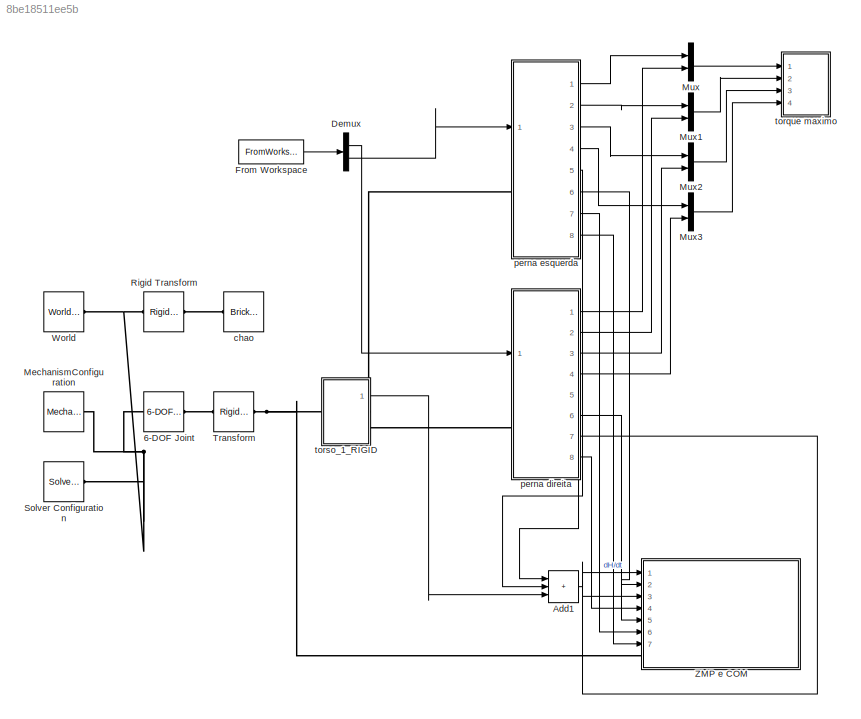
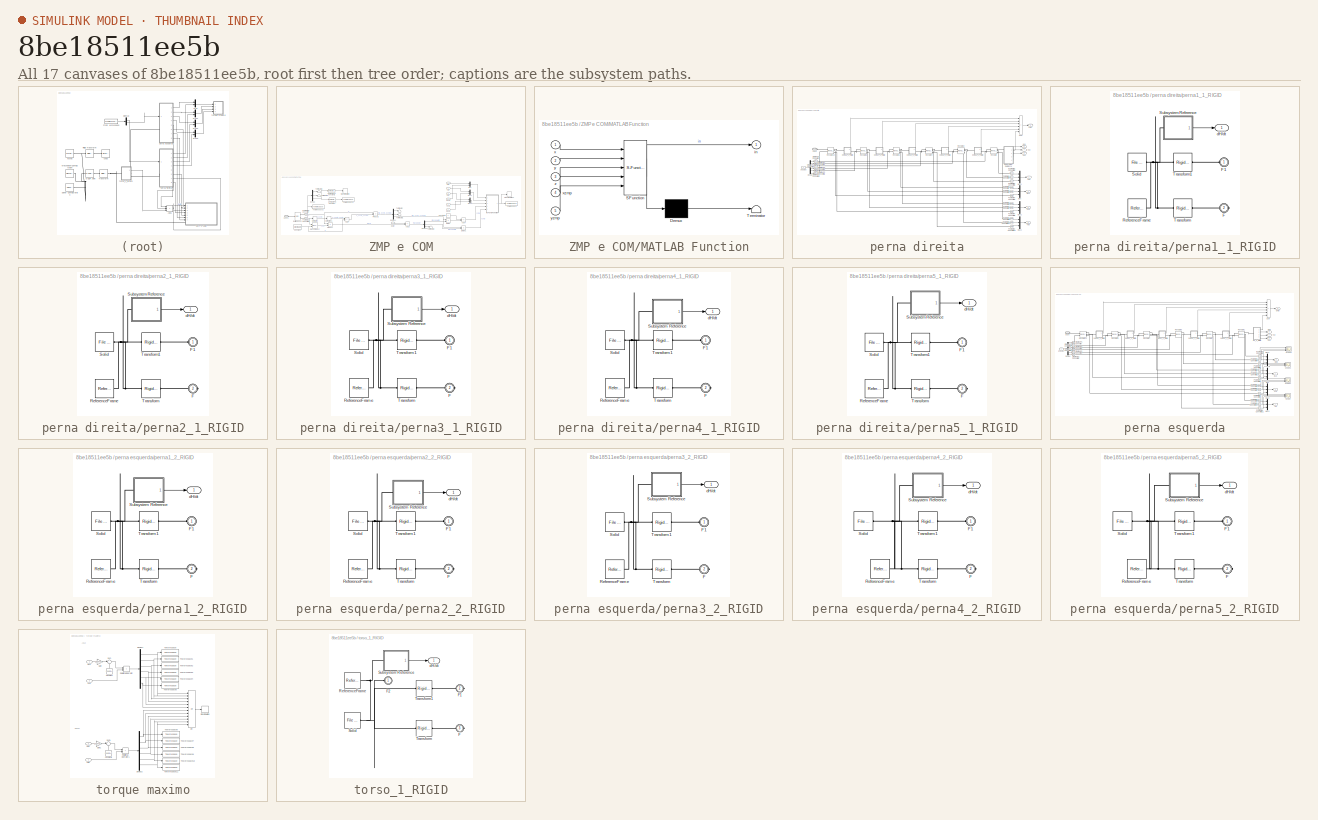
[diagram: thumbnail index - all 17 canvases of the model, root first then tree order]
MODEL slx_8be18511ee5b
KIND model
CONFIG AbsTol = auto
CONFIG EnableMultiTasking = off
CONFIG FixedStep = auto
CONFIG MaxStep = auto
CONFIG MinStep = auto
CONFIG RelTol = 1e-3
CONFIG SampleTimeConstraint = Unconstrained
CONFIG SolverName = VariableStepAuto
CONFIG StartTime = 0.0
CONFIG StopTime = 3
WORKSPACE source: external: MAT-File  (data not in archive)
BLOCK [Reference] 6-DOF Joint  REF=sm_lib/Joints/6-DOF Joint
  Ports = [0, 0, 0, 0, 0, 1, 1]
  SourceBlock = sm_lib/Joints/6-DOF Joint
  SourceProductBaseCode = MS
  SourceType = 6-DOF Joint
BLOCK [Sum] Add1
  IconShape = rectangular
  Inputs = +++
  Ports = [3, 1]
BLOCK [Demux] Demux
  Outputs = 2
  Ports = [1, 2]
BLOCK [FromWorkspace] From Workspace
  VariableName = inputsim
BLOCK [Reference] MechanismConfiguration  REF=sm_lib/Utilities/Mechanism
Configuration
  Ports = [0, 0, 0, 0, 0, 0, 1]
  SourceBlock = sm_lib/Utilities/Mechanism\nConfiguration
  SourceProductBaseCode = MS
  SourceType = Mechanism\nConfiguration
BLOCK [Mux] Mux
  DisplayOption = bar
  Inputs = 2
  Ports = [2, 1]
BLOCK [Mux] Mux1
  DisplayOption = bar
  Inputs = 2
  Ports = [2, 1]
BLOCK [Mux] Mux2
  DisplayOption = bar
  Inputs = 2
  Ports = [2, 1]
BLOCK [Mux] Mux3
  DisplayOption = bar
  Inputs = 2
  Ports = [2, 1]
BLOCK [Reference] Rigid Transform  REF=sm_lib/Frames and
Transforms/Rigid
Transform
  Ports = [0, 0, 0, 0, 0, 1, 1]
  SourceBlock = sm_lib/Frames and\nTransforms/Rigid\nTransform
  SourceProductBaseCode = MS
  SourceType = Rigid\nTransform
BLOCK [Reference] Solver Configuration  REF=nesl_utility/Solver
Configuration
  Ports = [0, 0, 0, 0, 0, 0, 1]
  SourceBlock = nesl_utility/Solver\nConfiguration
  SourceProductBaseCode = SS,PW,VE
  SourceType = Solver\nConfiguration
BLOCK [Reference] Transform  REF=sm_lib/Frames and
Transforms/Rigid
Transform
  Ports = [0, 0, 0, 0, 0, 1, 1]
  SourceBlock = sm_lib/Frames and\nTransforms/Rigid\nTransform
  SourceProductBaseCode = MS
  SourceType = Rigid\nTransform
BLOCK [Reference] World  REF=sm_lib/Frames and
Transforms/World Frame
  Ports = [0, 0, 0, 0, 0, 0, 1]
  SourceBlock = sm_lib/Frames and\nTransforms/World Frame
  SourceProductBaseCode = MS
  SourceType = World Frame
BLOCK [SubSystem] ZMP e COM
  Ports = [7, 0, 0, 0, 0, 1]
  RequestExecContextInheritance = off
BLOCK [Sum] ZMP e COM/Add
  IconShape = rectangular
  Inputs = +-
  Ports = [2, 1]
BLOCK [Sum] ZMP e COM/Add2
  IconShape = rectangular
  Inputs = -+
  Ports = [2, 1]
BLOCK [Sum] ZMP e COM/Add4
  IconShape = rectangular
  Inputs = +-
  Ports = [2, 1]
BLOCK [Reference] ZMP e COM/Compare To Constant  REF=simulink/Logic and Bit
Operations/Compare
To Constant
  Ports = [1, 1]
  SourceBlock = simulink/Logic and Bit\nOperations/Compare\nTo Constant
  SourceProductBaseCode = SL
  SourceType = Compare To Constant
BLOCK [Reference] ZMP e COM/Compare To Constant1  REF=simulink/Logic and Bit
Operations/Compare
To Constant
  Ports = [1, 1]
  SourceBlock = simulink/Logic and Bit\nOperations/Compare\nTo Constant
  SourceProductBaseCode = SL
  SourceType = Compare To Constant
BLOCK [PMIOPort] ZMP e COM/Conn1
  Side = Left
BLOCK [Constant] ZMP e COM/Constant
  Value = gravidade
BLOCK [Constant] ZMP e COM/Constant2
  Value = 0
BLOCK [Reference] ZMP e COM/Cross Product  REF=Contact_Forces_Lib/Math/Cross
Product
  Ports = [2, 1]
  SourceBlock = Contact_Forces_Lib/Math/Cross\nProduct
  SourceProductName = Simscape Multibody Contact Forces Library
  SourceType = SubSystem
BLOCK [Demux] ZMP e COM/Demux
  Outputs = 3
  Ports = [1, 3]
BLOCK [Demux] ZMP e COM/Demux1
  Outputs = 3
  Ports = [1, 3]
BLOCK [Demux] ZMP e COM/Demux2
  Outputs = 3
  Ports = [1, 3]
BLOCK [Derivative] ZMP e COM/Derivative
BLOCK [Derivative] ZMP e COM/Derivative1
BLOCK [Product] ZMP e COM/Divide
  Inputs = /*
  Ports = [2, 1]
BLOCK [Product] ZMP e COM/Divide1
  Inputs = /*
  Ports = [2, 1]
BLOCK [Reference] ZMP e COM/Inertia Sensor  REF=sm_lib/Body Elements/Inertia Sensor
  Ports = [0, 0, 0, 0, 0, 1, 2]
  SourceBlock = sm_lib/Body Elements/Inertia Sensor
  SourceProductBaseCode = MS
  SourceType = Inertia Sensor
BLOCK [SubSystem] ZMP e COM/MATLAB Function
  Commented = on
  ErrorFcn = Stateflow.Translate.translate
  PermitHierarchicalResolution = ExplicitOnly
  Ports = [5, 1]
  RequestExecContextInheritance = off
  SFBlockType = MATLAB Function
  TreatAsAtomicUnit = on
BLOCK [Demux] ZMP e COM/MATLAB Function/ Demux 
  Outputs = 1
  Ports = [1, 1]
BLOCK [S-Function] ZMP e COM/MATLAB Function/ SFunction 
  EnableBusSupport = on
  FunctionName = sf_sfun
  PortCounts = [5 2]
  Ports = [5, 2]
  SFcnIsStateOwnerBlock = off
  SFunctionDeploymentMode = off
  Tag = Stateflow S-Function 1
BLOCK [Terminator] ZMP e COM/MATLAB Function/ Terminator 
BLOCK [Outport] ZMP e COM/MATLAB Function/in
BLOCK [Inport] ZMP e COM/MATLAB Function/x
BLOCK [Inport] ZMP e COM/MATLAB Function/xzmp
  Port = 4
BLOCK [Inport] ZMP e COM/MATLAB Function/y
  Port = 2
BLOCK [Inport] ZMP e COM/MATLAB Function/yzmp
  Port = 5
BLOCK [Inport] ZMP e COM/MATLAB Function/z
  Port = 3
BLOCK [Mux] ZMP e COM/Mux
  DisplayOption = bar
  Inputs = 2
  Ports = [2, 1]
BLOCK [Mux] ZMP e COM/Mux1
  DisplayOption = bar
  Inputs = 2
  Ports = [2, 1]
BLOCK [Mux] ZMP e COM/Mux2
  DisplayOption = bar
  Inputs = 2
  Ports = [2, 1]
BLOCK [Reference] ZMP e COM/PS-Simulink Converter  REF=nesl_utility/PS-Simulink
Converter
  Ports = [0, 1, 0, 0, 0, 1]
  SourceBlock = nesl_utility/PS-Simulink\nConverter
  SourceProductBaseCode = SS,PW,VE
  SourceType = PS-Simulink\nConverter
BLOCK [Reference] ZMP e COM/PS-Simulink Converter1  REF=nesl_utility/PS-Simulink
Converter
  Ports = [0, 1, 0, 0, 0, 1]
  SourceBlock = nesl_utility/PS-Simulink\nConverter
  SourceProductBaseCode = SS,PW,VE
  SourceType = PS-Simulink\nConverter
BLOCK [Product] ZMP e COM/Product
  Ports = [2, 1]
BLOCK [Product] ZMP e COM/Product1
  Ports = [2, 1]
BLOCK [Stop] ZMP e COM/Stop Simulation
  Commented = on
BLOCK [Stop] ZMP e COM/Stop Simulation1
  Commented = on
BLOCK [Terminator] ZMP e COM/Terminator
BLOCK [Terminator] ZMP e COM/Terminator1
BLOCK [Terminator] ZMP e COM/Terminator2
BLOCK [Terminator] ZMP e COM/Terminator3
BLOCK [Terminator] ZMP e COM/Terminator4
BLOCK [ToWorkspace] ZMP e COM/To Workspace
  Commented = on
  FixptAsFi = on
  MaxDataPoints = inf
  Ports = [1]
  SampleTime = -1
  Save2DSignal = 2-D array (concatenate along first dimension)
  VariableName = ZMP
BLOCK [ToWorkspace] ZMP e COM/To Workspace1
  FixptAsFi = on
  MaxDataPoints = inf
  Ports = [1]
  SampleTime = -1
  Save2DSignal = 2-D array (concatenate along first dimension)
  VariableName = queda
BLOCK [ToWorkspace] ZMP e COM/To Workspace2
  FixptAsFi = on
  MaxDataPoints = inf
  Ports = [1]
  SampleTime = -1
  Save2DSignal = 2-D array (concatenate along first dimension)
  VariableName = COM
BLOCK [Inport] ZMP e COM/Xdir
  Port = 2
BLOCK [Inport] ZMP e COM/Xesq
  Port = 5
BLOCK [Inport] ZMP e COM/Ydir
  Port = 3
BLOCK [Inport] ZMP e COM/Yesq
  Port = 6
BLOCK [Inport] ZMP e COM/Zdir
  Port = 4
BLOCK [Inport] ZMP e COM/Zesq
  Port = 7
BLOCK [Inport] ZMP e COM/dH//dt
BLOCK [Reference] chao  REF=sm_lib/Body Elements/Brick Solid
  Ports = [0, 0, 0, 0, 0, 0, 1]
  SourceBlock = sm_lib/Body Elements/Brick Solid
  SourceProductBaseCode = MS
  SourceType = Brick Solid
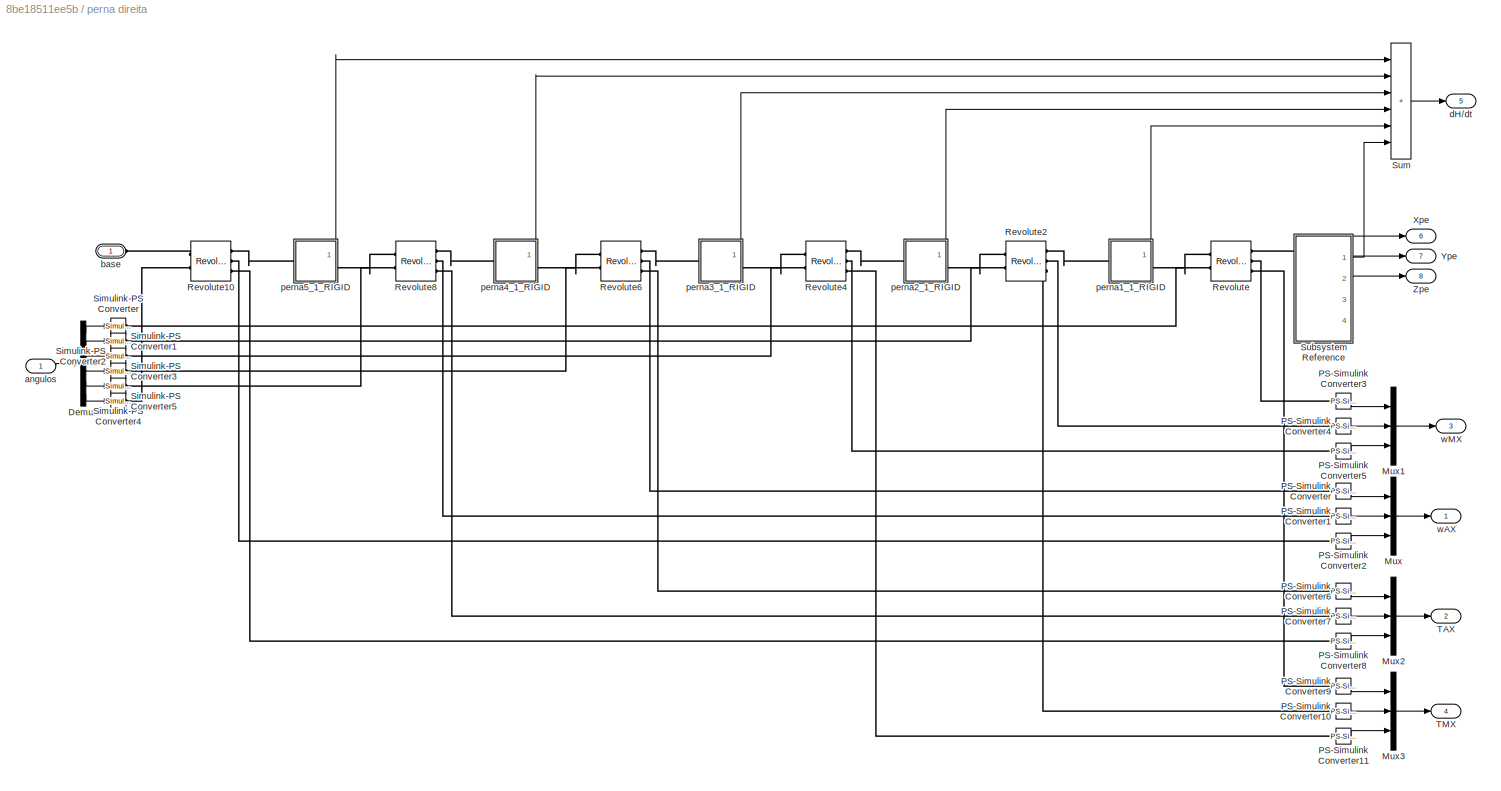
BLOCK [SubSystem] perna direita
  NameLocation = top
  Ports = [1, 8, 0, 0, 0, 1]
  RequestExecContextInheritance = off
BLOCK [Demux] perna direita/Demux
  Outputs = 6
  Ports = [1, 6]
BLOCK [Mux] perna direita/Mux
  DisplayOption = bar
  Inputs = 3
  Ports = [3, 1]
BLOCK [Mux] perna direita/Mux1
  DisplayOption = bar
  Inputs = 3
  Ports = [3, 1]
BLOCK [Mux] perna direita/Mux2
  DisplayOption = bar
  Inputs = 3
  Ports = [3, 1]
BLOCK [Mux] perna direita/Mux3
  DisplayOption = bar
  Inputs = 3
  Ports = [3, 1]
BLOCK [Reference] perna direita/PS-Simulink Converter  REF=nesl_utility/PS-Simulink
Converter
  Ports = [0, 1, 0, 0, 0, 1]
  SourceBlock = nesl_utility/PS-Simulink\nConverter
  SourceProductBaseCode = SS,PW,VE
  SourceType = PS-Simulink\nConverter
BLOCK [Reference] perna direita/PS-Simulink Converter1  REF=nesl_utility/PS-Simulink
Converter
  Ports = [0, 1, 0, 0, 0, 1]
  SourceBlock = nesl_utility/PS-Simulink\nConverter
  SourceProductBaseCode = SS,PW,VE
  SourceType = PS-Simulink\nConverter
BLOCK [Reference] perna direita/PS-Simulink Converter10  REF=nesl_utility/PS-Simulink
Converter
  Ports = [0, 1, 0, 0, 0, 1]
  SourceBlock = nesl_utility/PS-Simulink\nConverter
  SourceProductBaseCode = SS,PW,VE
  SourceType = PS-Simulink\nConverter
BLOCK [Reference] perna direita/PS-Simulink Converter11  REF=nesl_utility/PS-Simulink
Converter
  Ports = [0, 1, 0, 0, 0, 1]
  SourceBlock = nesl_utility/PS-Simulink\nConverter
  SourceProductBaseCode = SS,PW,VE
  SourceType = PS-Simulink\nConverter
BLOCK [Reference] perna direita/PS-Simulink Converter2  REF=nesl_utility/PS-Simulink
Converter
  Ports = [0, 1, 0, 0, 0, 1]
  SourceBlock = nesl_utility/PS-Simulink\nConverter
  SourceProductBaseCode = SS,PW,VE
  SourceType = PS-Simulink\nConverter
BLOCK [Reference] perna direita/PS-Simulink Converter3  REF=nesl_utility/PS-Simulink
Converter
  Ports = [0, 1, 0, 0, 0, 1]
  SourceBlock = nesl_utility/PS-Simulink\nConverter
  SourceProductBaseCode = SS,PW,VE
  SourceType = PS-Simulink\nConverter
BLOCK [Reference] perna direita/PS-Simulink Converter4  REF=nesl_utility/PS-Simulink
Converter
  Ports = [0, 1, 0, 0, 0, 1]
  SourceBlock = nesl_utility/PS-Simulink\nConverter
  SourceProductBaseCode = SS,PW,VE
  SourceType = PS-Simulink\nConverter
BLOCK [Reference] perna direita/PS-Simulink Converter5  REF=nesl_utility/PS-Simulink
Converter
  Ports = [0, 1, 0, 0, 0, 1]
  SourceBlock = nesl_utility/PS-Simulink\nConverter
  SourceProductBaseCode = SS,PW,VE
  SourceType = PS-Simulink\nConverter
BLOCK [Reference] perna direita/PS-Simulink Converter6  REF=nesl_utility/PS-Simulink
Converter
  Ports = [0, 1, 0, 0, 0, 1]
  SourceBlock = nesl_utility/PS-Simulink\nConverter
  SourceProductBaseCode = SS,PW,VE
  SourceType = PS-Simulink\nConverter
BLOCK [Reference] perna direita/PS-Simulink Converter7  REF=nesl_utility/PS-Simulink
Converter
  Ports = [0, 1, 0, 0, 0, 1]
  SourceBlock = nesl_utility/PS-Simulink\nConverter
  SourceProductBaseCode = SS,PW,VE
  SourceType = PS-Simulink\nConverter
BLOCK [Reference] perna direita/PS-Simulink Converter8  REF=nesl_utility/PS-Simulink
Converter
  Ports = [0, 1, 0, 0, 0, 1]
  SourceBlock = nesl_utility/PS-Simulink\nConverter
  SourceProductBaseCode = SS,PW,VE
  SourceType = PS-Simulink\nConverter
BLOCK [Reference] perna direita/PS-Simulink Converter9  REF=nesl_utility/PS-Simulink
Converter
  Ports = [0, 1, 0, 0, 0, 1]
  SourceBlock = nesl_utility/PS-Simulink\nConverter
  SourceProductBaseCode = SS,PW,VE
  SourceType = PS-Simulink\nConverter
BLOCK [Reference] perna direita/Revolute  REF=sm_lib/Joints/Revolute Joint
  Ports = [0, 0, 0, 0, 0, 2, 3]
  SourceBlock = sm_lib/Joints/Revolute Joint
  SourceProductBaseCode = MS
  SourceType = Revolute Joint
BLOCK [Reference] perna direita/Revolute10  REF=sm_lib/Joints/Revolute Joint
  Ports = [0, 0, 0, 0, 0, 2, 3]
  SourceBlock = sm_lib/Joints/Revolute Joint
  SourceProductBaseCode = MS
  SourceType = Revolute Joint
BLOCK [Reference] perna direita/Revolute2  REF=sm_lib/Joints/Revolute Joint
  Ports = [0, 0, 0, 0, 0, 2, 3]
  SourceBlock = sm_lib/Joints/Revolute Joint
  SourceProductBaseCode = MS
  SourceType = Revolute Joint
BLOCK [Reference] perna direita/Revolute4  REF=sm_lib/Joints/Revolute Joint
  Ports = [0, 0, 0, 0, 0, 2, 3]
  SourceBlock = sm_lib/Joints/Revolute Joint
  SourceProductBaseCode = MS
  SourceType = Revolute Joint
BLOCK [Reference] perna direita/Revolute6  REF=sm_lib/Joints/Revolute Joint
  Ports = [0, 0, 0, 0, 0, 2, 3]
  SourceBlock = sm_lib/Joints/Revolute Joint
  SourceProductBaseCode = MS
  SourceType = Revolute Joint
BLOCK [Reference] perna direita/Revolute8  REF=sm_lib/Joints/Revolute Joint
  Ports = [0, 0, 0, 0, 0, 2, 3]
  SourceBlock = sm_lib/Joints/Revolute Joint
  SourceProductBaseCode = MS
  SourceType = Revolute Joint
BLOCK [Reference] perna direita/Simulink-PS Converter  REF=nesl_utility/Simulink-PS
Converter
  Ports = [1, 0, 0, 0, 0, 0, 1]
  SourceBlock = nesl_utility/Simulink-PS\nConverter
  SourceProductBaseCode = SS,PW,VE
  SourceType = Simulink-PS\nConverter
BLOCK [Reference] perna direita/Simulink-PS Converter1  REF=nesl_utility/Simulink-PS
Converter
  Ports = [1, 0, 0, 0, 0, 0, 1]
  SourceBlock = nesl_utility/Simulink-PS\nConverter
  SourceProductBaseCode = SS,PW,VE
  SourceType = Simulink-PS\nConverter
BLOCK [Reference] perna direita/Simulink-PS Converter2  REF=nesl_utility/Simulink-PS
Converter
  Ports = [1, 0, 0, 0, 0, 0, 1]
  SourceBlock = nesl_utility/Simulink-PS\nConverter
  SourceProductBaseCode = SS,PW,VE
  SourceType = Simulink-PS\nConverter
BLOCK [Reference] perna direita/Simulink-PS Converter3  REF=nesl_utility/Simulink-PS
Converter
  Ports = [1, 0, 0, 0, 0, 0, 1]
  SourceBlock = nesl_utility/Simulink-PS\nConverter
  SourceProductBaseCode = SS,PW,VE
  SourceType = Simulink-PS\nConverter
BLOCK [Reference] perna direita/Simulink-PS Converter4  REF=nesl_utility/Simulink-PS
Converter
  Ports = [1, 0, 0, 0, 0, 0, 1]
  SourceBlock = nesl_utility/Simulink-PS\nConverter
  SourceProductBaseCode = SS,PW,VE
  SourceType = Simulink-PS\nConverter
BLOCK [Reference] perna direita/Simulink-PS Converter5  REF=nesl_utility/Simulink-PS
Converter
  Ports = [1, 0, 0, 0, 0, 0, 1]
  SourceBlock = nesl_utility/Simulink-PS\nConverter
  SourceProductBaseCode = SS,PW,VE
  SourceType = Simulink-PS\nConverter
BLOCK [SubSystem] perna direita/Subsystem Reference
  Ports = [0, 4, 0, 0, 0, 1]
  ReferencedSubsystem = pe
  RequestExecContextInheritance = off
BLOCK [Sum] perna direita/Sum
  IconShape = rectangular
  Inputs = ++++++
  Ports = [6, 1]
BLOCK [Outport] perna direita/TAX
  Port = 2
BLOCK [Outport] perna direita/TMX
  Port = 4
BLOCK [Outport] perna direita/Xpe
  Port = 6
BLOCK [Outport] perna direita/Ype
  Port = 7
BLOCK [Outport] perna direita/Zpe
  Port = 8
BLOCK [Inport] perna direita/angulos
BLOCK [PMIOPort] perna direita/base
  Side = Left
BLOCK [Outport] perna direita/dH//dt
  Port = 5
BLOCK [SubSystem] perna direita/perna1_1_RIGID
  Ports = [0, 1, 0, 0, 0, 1, 1]
  RequestExecContextInheritance = off
BLOCK [PMIOPort] perna direita/perna1_1_RIGID/F
  Port = 2
  Side = Right
BLOCK [PMIOPort] perna direita/perna1_1_RIGID/F1
  Side = Left
BLOCK [Reference] perna direita/perna1_1_RIGID/ReferenceFrame  REF=sm_lib/Frames and
Transforms/Reference
Frame
  Ports = [0, 0, 0, 0, 0, 0, 1]
  SourceBlock = sm_lib/Frames and\nTransforms/Reference\nFrame
  SourceProductBaseCode = MS
  SourceType = Reference\nFrame
BLOCK [Reference] perna direita/perna1_1_RIGID/Solid  REF=sm_lib/Body Elements/File Solid
  Ports = [0, 0, 0, 0, 0, 0, 1]
  SourceBlock = sm_lib/Body Elements/File Solid
  SourceProductBaseCode = MS
  SourceType = File Solid
BLOCK [SubSystem] perna direita/perna1_1_RIGID/Subsystem Reference
  Ports = [0, 1, 0, 0, 0, 1]
  ReferencedSubsystem = dH_dt
  RequestExecContextInheritance = off
BLOCK [Reference] perna direita/perna1_1_RIGID/Transform  REF=sm_lib/Frames and
Transforms/Rigid
Transform
  Ports = [0, 0, 0, 0, 0, 1, 1]
  SourceBlock = sm_lib/Frames and\nTransforms/Rigid\nTransform
  SourceProductBaseCode = MS
  SourceType = Rigid\nTransform
BLOCK [Reference] perna direita/perna1_1_RIGID/Transform1  REF=sm_lib/Frames and
Transforms/Rigid
Transform
  Ports = [0, 0, 0, 0, 0, 1, 1]
  SourceBlock = sm_lib/Frames and\nTransforms/Rigid\nTransform
  SourceProductBaseCode = MS
  SourceType = Rigid\nTransform
BLOCK [Outport] perna direita/perna1_1_RIGID/dH//dt
BLOCK [SubSystem] perna direita/perna2_1_RIGID
  Ports = [0, 1, 0, 0, 0, 1, 1]
  RequestExecContextInheritance = off
BLOCK [PMIOPort] perna direita/perna2_1_RIGID/F
  Port = 2
  Side = Right
BLOCK [PMIOPort] perna direita/perna2_1_RIGID/F1
  Side = Left
BLOCK [Reference] perna direita/perna2_1_RIGID/ReferenceFrame  REF=sm_lib/Frames and
Transforms/Reference
Frame
  Ports = [0, 0, 0, 0, 0, 0, 1]
  SourceBlock = sm_lib/Frames and\nTransforms/Reference\nFrame
  SourceProductBaseCode = MS
  SourceType = Reference\nFrame
BLOCK [Reference] perna direita/perna2_1_RIGID/Solid  REF=sm_lib/Body Elements/File Solid
  Ports = [0, 0, 0, 0, 0, 0, 1]
  SourceBlock = sm_lib/Body Elements/File Solid
  SourceProductBaseCode = MS
  SourceType = File Solid
BLOCK [SubSystem] perna direita/perna2_1_RIGID/Subsystem Reference
  Ports = [0, 1, 0, 0, 0, 1]
  ReferencedSubsystem = dH_dt
  RequestExecContextInheritance = off
BLOCK [Reference] perna direita/perna2_1_RIGID/Transform  REF=sm_lib/Frames and
Transforms/Rigid
Transform
  Ports = [0, 0, 0, 0, 0, 1, 1]
  SourceBlock = sm_lib/Frames and\nTransforms/Rigid\nTransform
  SourceProductBaseCode = MS
  SourceType = Rigid\nTransform
BLOCK [Reference] perna direita/perna2_1_RIGID/Transform1  REF=sm_lib/Frames and
Transforms/Rigid
Transform
  Ports = [0, 0, 0, 0, 0, 1, 1]
  SourceBlock = sm_lib/Frames and\nTransforms/Rigid\nTransform
  SourceProductBaseCode = MS
  SourceType = Rigid\nTransform
BLOCK [Outport] perna direita/perna2_1_RIGID/dH//dt
BLOCK [SubSystem] perna direita/perna3_1_RIGID
  Ports = [0, 1, 0, 0, 0, 1, 1]
  RequestExecContextInheritance = off
BLOCK [PMIOPort] perna direita/perna3_1_RIGID/F
  Port = 2
  Side = Right
BLOCK [PMIOPort] perna direita/perna3_1_RIGID/F1
  Side = Left
BLOCK [Reference] perna direita/perna3_1_RIGID/ReferenceFrame  REF=sm_lib/Frames and
Transforms/Reference
Frame
  Ports = [0, 0, 0, 0, 0, 0, 1]
  SourceBlock = sm_lib/Frames and\nTransforms/Reference\nFrame
  SourceProductBaseCode = MS
  SourceType = Reference\nFrame
BLOCK [Reference] perna direita/perna3_1_RIGID/Solid  REF=sm_lib/Body Elements/File Solid
  Ports = [0, 0, 0, 0, 0, 0, 1]
  SourceBlock = sm_lib/Body Elements/File Solid
  SourceProductBaseCode = MS
  SourceType = File Solid
BLOCK [SubSystem] perna direita/perna3_1_RIGID/Subsystem Reference
  Ports = [0, 1, 0, 0, 0, 1]
  ReferencedSubsystem = dH_dt
  RequestExecContextInheritance = off
BLOCK [Reference] perna direita/perna3_1_RIGID/Transform  REF=sm_lib/Frames and
Transforms/Rigid
Transform
  Ports = [0, 0, 0, 0, 0, 1, 1]
  SourceBlock = sm_lib/Frames and\nTransforms/Rigid\nTransform
  SourceProductBaseCode = MS
  SourceType = Rigid\nTransform
BLOCK [Reference] perna direita/perna3_1_RIGID/Transform1  REF=sm_lib/Frames and
Transforms/Rigid
Transform
  Ports = [0, 0, 0, 0, 0, 1, 1]
  SourceBlock = sm_lib/Frames and\nTransforms/Rigid\nTransform
  SourceProductBaseCode = MS
  SourceType = Rigid\nTransform
BLOCK [Outport] perna direita/perna3_1_RIGID/dH//dt
BLOCK [SubSystem] perna direita/perna4_1_RIGID
  Ports = [0, 1, 0, 0, 0, 1, 1]
  RequestExecContextInheritance = off
BLOCK [PMIOPort] perna direita/perna4_1_RIGID/F
  Port = 2
  Side = Right
BLOCK [PMIOPort] perna direita/perna4_1_RIGID/F1
  Side = Left
BLOCK [Reference] perna direita/perna4_1_RIGID/ReferenceFrame  REF=sm_lib/Frames and
Transforms/Reference
Frame
  Ports = [0, 0, 0, 0, 0, 0, 1]
  SourceBlock = sm_lib/Frames and\nTransforms/Reference\nFrame
  SourceProductBaseCode = MS
  SourceType = Reference\nFrame
BLOCK [Reference] perna direita/perna4_1_RIGID/Solid  REF=sm_lib/Body Elements/File Solid
  Ports = [0, 0, 0, 0, 0, 0, 1]
  SourceBlock = sm_lib/Body Elements/File Solid
  SourceProductBaseCode = MS
  SourceType = File Solid
BLOCK [SubSystem] perna direita/perna4_1_RIGID/Subsystem Reference
  Ports = [0, 1, 0, 0, 0, 1]
  ReferencedSubsystem = dH_dt
  RequestExecContextInheritance = off
BLOCK [Reference] perna direita/perna4_1_RIGID/Transform  REF=sm_lib/Frames and
Transforms/Rigid
Transform
  Ports = [0, 0, 0, 0, 0, 1, 1]
  SourceBlock = sm_lib/Frames and\nTransforms/Rigid\nTransform
  SourceProductBaseCode = MS
  SourceType = Rigid\nTransform
BLOCK [Reference] perna direita/perna4_1_RIGID/Transform1  REF=sm_lib/Frames and
Transforms/Rigid
Transform
  Ports = [0, 0, 0, 0, 0, 1, 1]
  SourceBlock = sm_lib/Frames and\nTransforms/Rigid\nTransform
  SourceProductBaseCode = MS
  SourceType = Rigid\nTransform
BLOCK [Outport] perna direita/perna4_1_RIGID/dH//dt
BLOCK [SubSystem] perna direita/perna5_1_RIGID
  Ports = [0, 1, 0, 0, 0, 1, 1]
  RequestExecContextInheritance = off
BLOCK [PMIOPort] perna direita/perna5_1_RIGID/F
  Port = 2
  Side = Right
BLOCK [PMIOPort] perna direita/perna5_1_RIGID/F1
  Side = Left
BLOCK [Reference] perna direita/perna5_1_RIGID/ReferenceFrame  REF=sm_lib/Frames and
Transforms/Reference
Frame
  Ports = [0, 0, 0, 0, 0, 0, 1]
  SourceBlock = sm_lib/Frames and\nTransforms/Reference\nFrame
  SourceProductBaseCode = MS
  SourceType = Reference\nFrame
BLOCK [Reference] perna direita/perna5_1_RIGID/Solid  REF=sm_lib/Body Elements/File Solid
  Ports = [0, 0, 0, 0, 0, 0, 1]
  SourceBlock = sm_lib/Body Elements/File Solid
  SourceProductBaseCode = MS
  SourceType = File Solid
BLOCK [SubSystem] perna direita/perna5_1_RIGID/Subsystem Reference
  Ports = [0, 1, 0, 0, 0, 1]
  ReferencedSubsystem = dH_dt
  RequestExecContextInheritance = off
BLOCK [Reference] perna direita/perna5_1_RIGID/Transform  REF=sm_lib/Frames and
Transforms/Rigid
Transform
  Ports = [0, 0, 0, 0, 0, 1, 1]
  SourceBlock = sm_lib/Frames and\nTransforms/Rigid\nTransform
  SourceProductBaseCode = MS
  SourceType = Rigid\nTransform
BLOCK [Reference] perna direita/perna5_1_RIGID/Transform1  REF=sm_lib/Frames and
Transforms/Rigid
Transform
  Ports = [0, 0, 0, 0, 0, 1, 1]
  SourceBlock = sm_lib/Frames and\nTransforms/Rigid\nTransform
  SourceProductBaseCode = MS
  SourceType = Rigid\nTransform
BLOCK [Outport] perna direita/perna5_1_RIGID/dH//dt
BLOCK [Outport] perna direita/wAX
BLOCK [Outport] perna direita/wMX
  Port = 3
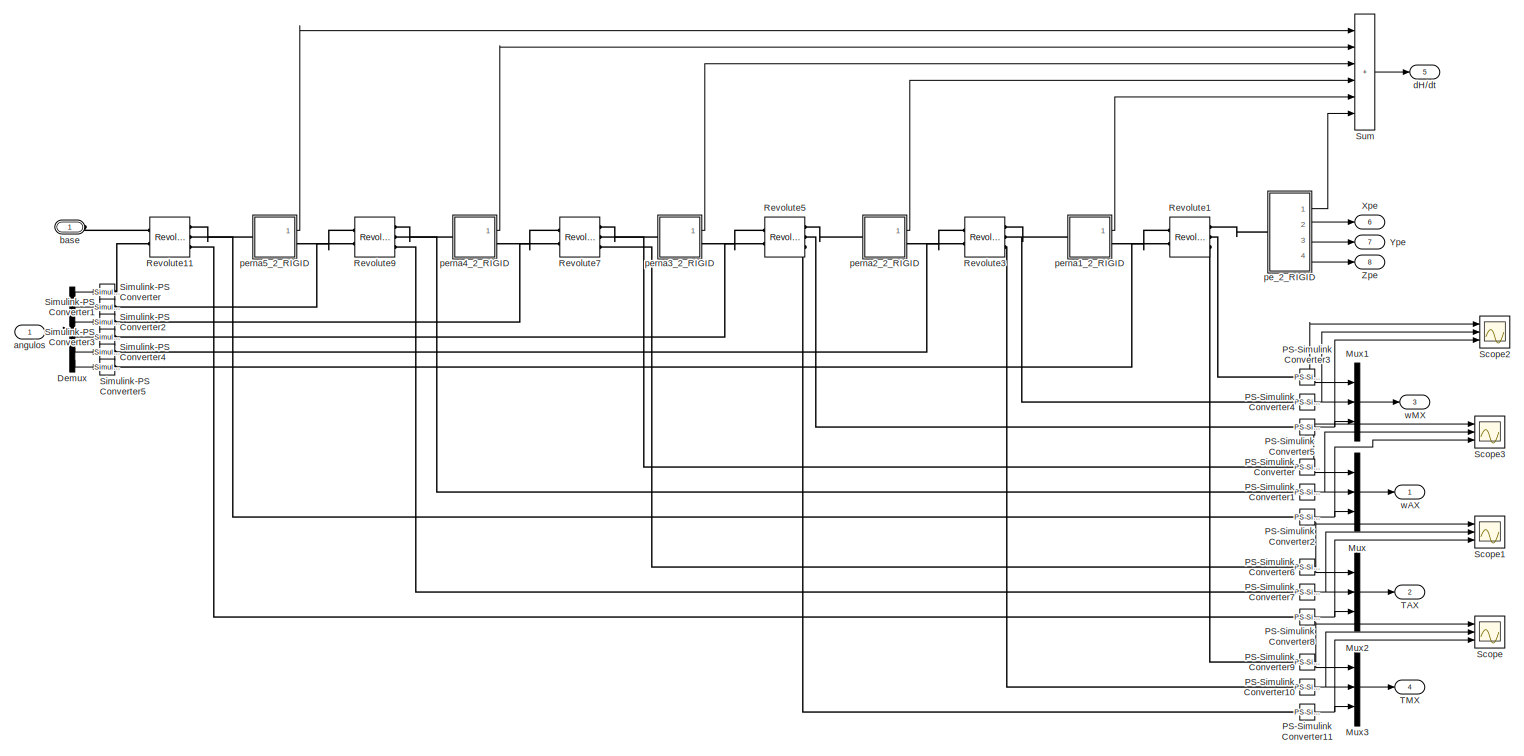
[diagram: perna esquerda - part 1/1, most of the canvas]
BLOCK [SubSystem] perna esquerda
  NameLocation = top
  Ports = [1, 8, 0, 0, 0, 1]
  RequestExecContextInheritance = off
BLOCK [Demux] perna esquerda/Demux
  Outputs = 6
  Ports = [1, 6]
BLOCK [Mux] perna esquerda/Mux
  DisplayOption = bar
  Inputs = 3
  Ports = [3, 1]
BLOCK [Mux] perna esquerda/Mux1
  DisplayOption = bar
  Inputs = 3
  Ports = [3, 1]
BLOCK [Mux] perna esquerda/Mux2
  DisplayOption = bar
  Inputs = 3
  Ports = [3, 1]
BLOCK [Mux] perna esquerda/Mux3
  DisplayOption = bar
  Inputs = 3
  Ports = [3, 1]
BLOCK [Reference] perna esquerda/PS-Simulink Converter  REF=nesl_utility/PS-Simulink
Converter
  Ports = [0, 1, 0, 0, 0, 1]
  SourceBlock = nesl_utility/PS-Simulink\nConverter
  SourceProductBaseCode = SS,PW,VE
  SourceType = PS-Simulink\nConverter
BLOCK [Reference] perna esquerda/PS-Simulink Converter1  REF=nesl_utility/PS-Simulink
Converter
  Ports = [0, 1, 0, 0, 0, 1]
  SourceBlock = nesl_utility/PS-Simulink\nConverter
  SourceProductBaseCode = SS,PW,VE
  SourceType = PS-Simulink\nConverter
BLOCK [Reference] perna esquerda/PS-Simulink Converter10  REF=nesl_utility/PS-Simulink
Converter
  Ports = [0, 1, 0, 0, 0, 1]
  SourceBlock = nesl_utility/PS-Simulink\nConverter
  SourceProductBaseCode = SS,PW,VE
  SourceType = PS-Simulink\nConverter
BLOCK [Reference] perna esquerda/PS-Simulink Converter11  REF=nesl_utility/PS-Simulink
Converter
  Ports = [0, 1, 0, 0, 0, 1]
  SourceBlock = nesl_utility/PS-Simulink\nConverter
  SourceProductBaseCode = SS,PW,VE
  SourceType = PS-Simulink\nConverter
BLOCK [Reference] perna esquerda/PS-Simulink Converter2  REF=nesl_utility/PS-Simulink
Converter
  Ports = [0, 1, 0, 0, 0, 1]
  SourceBlock = nesl_utility/PS-Simulink\nConverter
  SourceProductBaseCode = SS,PW,VE
  SourceType = PS-Simulink\nConverter
BLOCK [Reference] perna esquerda/PS-Simulink Converter3  REF=nesl_utility/PS-Simulink
Converter
  Ports = [0, 1, 0, 0, 0, 1]
  SourceBlock = nesl_utility/PS-Simulink\nConverter
  SourceProductBaseCode = SS,PW,VE
  SourceType = PS-Simulink\nConverter
BLOCK [Reference] perna esquerda/PS-Simulink Converter4  REF=nesl_utility/PS-Simulink
Converter
  Ports = [0, 1, 0, 0, 0, 1]
  SourceBlock = nesl_utility/PS-Simulink\nConverter
  SourceProductBaseCode = SS,PW,VE
  SourceType = PS-Simulink\nConverter
BLOCK [Reference] perna esquerda/PS-Simulink Converter5  REF=nesl_utility/PS-Simulink
Converter
  Ports = [0, 1, 0, 0, 0, 1]
  SourceBlock = nesl_utility/PS-Simulink\nConverter
  SourceProductBaseCode = SS,PW,VE
  SourceType = PS-Simulink\nConverter
BLOCK [Reference] perna esquerda/PS-Simulink Converter6  REF=nesl_utility/PS-Simulink
Converter
  Ports = [0, 1, 0, 0, 0, 1]
  SourceBlock = nesl_utility/PS-Simulink\nConverter
  SourceProductBaseCode = SS,PW,VE
  SourceType = PS-Simulink\nConverter
BLOCK [Reference] perna esquerda/PS-Simulink Converter7  REF=nesl_utility/PS-Simulink
Converter
  Ports = [0, 1, 0, 0, 0, 1]
  SourceBlock = nesl_utility/PS-Simulink\nConverter
  SourceProductBaseCode = SS,PW,VE
  SourceType = PS-Simulink\nConverter
BLOCK [Reference] perna esquerda/PS-Simulink Converter8  REF=nesl_utility/PS-Simulink
Converter
  Ports = [0, 1, 0, 0, 0, 1]
  SourceBlock = nesl_utility/PS-Simulink\nConverter
  SourceProductBaseCode = SS,PW,VE
  SourceType = PS-Simulink\nConverter
BLOCK [Reference] perna esquerda/PS-Simulink Converter9  REF=nesl_utility/PS-Simulink
Converter
  Ports = [0, 1, 0, 0, 0, 1]
  SourceBlock = nesl_utility/PS-Simulink\nConverter
  SourceProductBaseCode = SS,PW,VE
  SourceType = PS-Simulink\nConverter
BLOCK [Reference] perna esquerda/Revolute1  REF=sm_lib/Joints/Revolute Joint
  Ports = [0, 0, 0, 0, 0, 2, 3]
  SourceBlock = sm_lib/Joints/Revolute Joint
  SourceProductBaseCode = MS
  SourceType = Revolute Joint
BLOCK [Reference] perna esquerda/Revolute11  REF=sm_lib/Joints/Revolute Joint
  Ports = [0, 0, 0, 0, 0, 2, 3]
  SourceBlock = sm_lib/Joints/Revolute Joint
  SourceProductBaseCode = MS
  SourceType = Revolute Joint
BLOCK [Reference] perna esquerda/Revolute3  REF=sm_lib/Joints/Revolute Joint
  Ports = [0, 0, 0, 0, 0, 2, 3]
  SourceBlock = sm_lib/Joints/Revolute Joint
  SourceProductBaseCode = MS
  SourceType = Revolute Joint
BLOCK [Reference] perna esquerda/Revolute5  REF=sm_lib/Joints/Revolute Joint
  Ports = [0, 0, 0, 0, 0, 2, 3]
  SourceBlock = sm_lib/Joints/Revolute Joint
  SourceProductBaseCode = MS
  SourceType = Revolute Joint
BLOCK [Reference] perna esquerda/Revolute7  REF=sm_lib/Joints/Revolute Joint
  Ports = [0, 0, 0, 0, 0, 2, 3]
  SourceBlock = sm_lib/Joints/Revolute Joint
  SourceProductBaseCode = MS
  SourceType = Revolute Joint
BLOCK [Reference] perna esquerda/Revolute9  REF=sm_lib/Joints/Revolute Joint
  Ports = [0, 0, 0, 0, 0, 2, 3]
  SourceBlock = sm_lib/Joints/Revolute Joint
  SourceProductBaseCode = MS
  SourceType = Revolute Joint
BLOCK [Scope] perna esquerda/Scope
  Floating = off
  NumInputPorts = 3
  Ports = [3]
  ScopeSpecificationString = Simulink.scopes.TimeScopeBlockCfg('CurrentConfiguration', extmgr.ConfigurationSet(extmgr.Configuration('Core','General UI',true),extmgr.Configuration('Core','Source UI',true),extmgr.Configuration('Sources','WiredSimulink',true),extmgr.Configuration('Visuals','Time Domain',true,'SerializedDisplays',{struct('MinYLimReal','-0.08908','MaxYLimReal','0.05149','YLabelReal','','MinYLimMag','0.00000','MaxY...<+1487ch>
BLOCK [Scope] perna esquerda/Scope1
  Floating = off
  NumInputPorts = 3
  Ports = [3]
  ScopeSpecificationString = Simulink.scopes.TimeScopeBlockCfg('CurrentConfiguration', extmgr.ConfigurationSet(extmgr.Configuration('Core','General UI',true),extmgr.Configuration('Core','Source UI',true),extmgr.Configuration('Sources','WiredSimulink',true,'DataLoggingVariableName','ScopeData1'),extmgr.Configuration('Visuals','Time Domain',true,'SerializedDisplays',{struct('MinYLimReal','-0.3405','MaxYLimReal','0.96312','YLabe...<+1542ch>
BLOCK [Scope] perna esquerda/Scope2
  Floating = off
  NumInputPorts = 3
  Ports = [3]
  ScopeSpecificationString = Simulink.scopes.TimeScopeBlockCfg('CurrentConfiguration', extmgr.ConfigurationSet(extmgr.Configuration('Core','General UI',true),extmgr.Configuration('Core','Source UI',true),extmgr.Configuration('Sources','WiredSimulink',true,'DataLoggingVariableName','ScopeData1'),extmgr.Configuration('Visuals','Time Domain',true,'SerializedDisplays',{struct('MinYLimReal','-4.14467','MaxYLimReal','2.39954','YLab...<+1545ch>
BLOCK [Scope] perna esquerda/Scope3
  Floating = off
  NumInputPorts = 3
  Ports = [3]
  ScopeSpecificationString = Simulink.scopes.TimeScopeBlockCfg('CurrentConfiguration', extmgr.ConfigurationSet(extmgr.Configuration('Core','General UI',true),extmgr.Configuration('Core','Source UI',true),extmgr.Configuration('Sources','WiredSimulink',true,'DataLoggingVariableName','ScopeData2'),extmgr.Configuration('Visuals','Time Domain',true,'SerializedDisplays',{struct('MinYLimReal','-1.789','MaxYLimReal','2.1378','YLabelR...<+1536ch>
BLOCK [Reference] perna esquerda/Simulink-PS Converter  REF=nesl_utility/Simulink-PS
Converter
  Ports = [1, 0, 0, 0, 0, 0, 1]
  SourceBlock = nesl_utility/Simulink-PS\nConverter
  SourceProductBaseCode = SS,PW,VE
  SourceType = Simulink-PS\nConverter
BLOCK [Reference] perna esquerda/Simulink-PS Converter1  REF=nesl_utility/Simulink-PS
Converter
  Ports = [1, 0, 0, 0, 0, 0, 1]
  SourceBlock = nesl_utility/Simulink-PS\nConverter
  SourceProductBaseCode = SS,PW,VE
  SourceType = Simulink-PS\nConverter
BLOCK [Reference] perna esquerda/Simulink-PS Converter2  REF=nesl_utility/Simulink-PS
Converter
  Ports = [1, 0, 0, 0, 0, 0, 1]
  SourceBlock = nesl_utility/Simulink-PS\nConverter
  SourceProductBaseCode = SS,PW,VE
  SourceType = Simulink-PS\nConverter
BLOCK [Reference] perna esquerda/Simulink-PS Converter3  REF=nesl_utility/Simulink-PS
Converter
  Ports = [1, 0, 0, 0, 0, 0, 1]
  SourceBlock = nesl_utility/Simulink-PS\nConverter
  SourceProductBaseCode = SS,PW,VE
  SourceType = Simulink-PS\nConverter
BLOCK [Reference] perna esquerda/Simulink-PS Converter4  REF=nesl_utility/Simulink-PS
Converter
  Ports = [1, 0, 0, 0, 0, 0, 1]
  SourceBlock = nesl_utility/Simulink-PS\nConverter
  SourceProductBaseCode = SS,PW,VE
  SourceType = Simulink-PS\nConverter
BLOCK [Reference] perna esquerda/Simulink-PS Converter5  REF=nesl_utility/Simulink-PS
Converter
  Ports = [1, 0, 0, 0, 0, 0, 1]
  SourceBlock = nesl_utility/Simulink-PS\nConverter
  SourceProductBaseCode = SS,PW,VE
  SourceType = Simulink-PS\nConverter
BLOCK [Sum] perna esquerda/Sum
  IconShape = rectangular
  Inputs = ++++++
  Ports = [6, 1]
BLOCK [Outport] perna esquerda/TAX
  Port = 2
BLOCK [Outport] perna esquerda/TMX
  Port = 4
BLOCK [Outport] perna esquerda/Xpe
  Port = 6
BLOCK [Outport] perna esquerda/Ype
  Port = 7
BLOCK [Outport] perna esquerda/Zpe
  Port = 8
BLOCK [Inport] perna esquerda/angulos
BLOCK [PMIOPort] perna esquerda/base
  Side = Left
BLOCK [Outport] perna esquerda/dH//dt
  Port = 5
BLOCK [SubSystem] perna esquerda/pe_2_RIGID
  Ports = [0, 4, 0, 0, 0, 1]
  ReferencedSubsystem = pe
  RequestExecContextInheritance = off
BLOCK [SubSystem] perna esquerda/perna1_2_RIGID
  Ports = [0, 1, 0, 0, 0, 1, 1]
  RequestExecContextInheritance = off
BLOCK [PMIOPort] perna esquerda/perna1_2_RIGID/F
  Port = 2
  Side = Right
BLOCK [PMIOPort] perna esquerda/perna1_2_RIGID/F1
  Side = Left
BLOCK [Reference] perna esquerda/perna1_2_RIGID/ReferenceFrame  REF=sm_lib/Frames and
Transforms/Reference
Frame
  Ports = [0, 0, 0, 0, 0, 0, 1]
  SourceBlock = sm_lib/Frames and\nTransforms/Reference\nFrame
  SourceProductBaseCode = MS
  SourceType = Reference\nFrame
BLOCK [Reference] perna esquerda/perna1_2_RIGID/Solid  REF=sm_lib/Body Elements/File Solid
  Ports = [0, 0, 0, 0, 0, 0, 1]
  SourceBlock = sm_lib/Body Elements/File Solid
  SourceProductBaseCode = MS
  SourceType = File Solid
BLOCK [SubSystem] perna esquerda/perna1_2_RIGID/Subsystem Reference
  Ports = [0, 1, 0, 0, 0, 1]
  ReferencedSubsystem = dH_dt
  RequestExecContextInheritance = off
BLOCK [Reference] perna esquerda/perna1_2_RIGID/Transform  REF=sm_lib/Frames and
Transforms/Rigid
Transform
  Ports = [0, 0, 0, 0, 0, 1, 1]
  SourceBlock = sm_lib/Frames and\nTransforms/Rigid\nTransform
  SourceProductBaseCode = MS
  SourceType = Rigid\nTransform
BLOCK [Reference] perna esquerda/perna1_2_RIGID/Transform1  REF=sm_lib/Frames and
Transforms/Rigid
Transform
  Ports = [0, 0, 0, 0, 0, 1, 1]
  SourceBlock = sm_lib/Frames and\nTransforms/Rigid\nTransform
  SourceProductBaseCode = MS
  SourceType = Rigid\nTransform
BLOCK [Outport] perna esquerda/perna1_2_RIGID/dH//dt
BLOCK [SubSystem] perna esquerda/perna2_2_RIGID
  Ports = [0, 1, 0, 0, 0, 1, 1]
  RequestExecContextInheritance = off
BLOCK [PMIOPort] perna esquerda/perna2_2_RIGID/F
  Port = 2
  Side = Right
BLOCK [PMIOPort] perna esquerda/perna2_2_RIGID/F1
  Side = Left
BLOCK [Reference] perna esquerda/perna2_2_RIGID/ReferenceFrame  REF=sm_lib/Frames and
Transforms/Reference
Frame
  Ports = [0, 0, 0, 0, 0, 0, 1]
  SourceBlock = sm_lib/Frames and\nTransforms/Reference\nFrame
  SourceProductBaseCode = MS
  SourceType = Reference\nFrame
BLOCK [Reference] perna esquerda/perna2_2_RIGID/Solid  REF=sm_lib/Body Elements/File Solid
  Ports = [0, 0, 0, 0, 0, 0, 1]
  SourceBlock = sm_lib/Body Elements/File Solid
  SourceProductBaseCode = MS
  SourceType = File Solid
BLOCK [SubSystem] perna esquerda/perna2_2_RIGID/Subsystem Reference
  Ports = [0, 1, 0, 0, 0, 1]
  ReferencedSubsystem = dH_dt
  RequestExecContextInheritance = off
BLOCK [Reference] perna esquerda/perna2_2_RIGID/Transform  REF=sm_lib/Frames and
Transforms/Rigid
Transform
  Ports = [0, 0, 0, 0, 0, 1, 1]
  SourceBlock = sm_lib/Frames and\nTransforms/Rigid\nTransform
  SourceProductBaseCode = MS
  SourceType = Rigid\nTransform
BLOCK [Reference] perna esquerda/perna2_2_RIGID/Transform1  REF=sm_lib/Frames and
Transforms/Rigid
Transform
  Ports = [0, 0, 0, 0, 0, 1, 1]
  SourceBlock = sm_lib/Frames and\nTransforms/Rigid\nTransform
  SourceProductBaseCode = MS
  SourceType = Rigid\nTransform
BLOCK [Outport] perna esquerda/perna2_2_RIGID/dH//dt
BLOCK [SubSystem] perna esquerda/perna3_2_RIGID
  Ports = [0, 1, 0, 0, 0, 1, 1]
  RequestExecContextInheritance = off
BLOCK [PMIOPort] perna esquerda/perna3_2_RIGID/F
  Port = 2
  Side = Right
BLOCK [PMIOPort] perna esquerda/perna3_2_RIGID/F1
  Side = Left
BLOCK [Reference] perna esquerda/perna3_2_RIGID/ReferenceFrame  REF=sm_lib/Frames and
Transforms/Reference
Frame
  Ports = [0, 0, 0, 0, 0, 0, 1]
  SourceBlock = sm_lib/Frames and\nTransforms/Reference\nFrame
  SourceProductBaseCode = MS
  SourceType = Reference\nFrame
BLOCK [Reference] perna esquerda/perna3_2_RIGID/Solid  REF=sm_lib/Body Elements/File Solid
  Ports = [0, 0, 0, 0, 0, 0, 1]
  SourceBlock = sm_lib/Body Elements/File Solid
  SourceProductBaseCode = MS
  SourceType = File Solid
BLOCK [SubSystem] perna esquerda/perna3_2_RIGID/Subsystem Reference
  Ports = [0, 1, 0, 0, 0, 1]
  ReferencedSubsystem = dH_dt
  RequestExecContextInheritance = off
BLOCK [Reference] perna esquerda/perna3_2_RIGID/Transform  REF=sm_lib/Frames and
Transforms/Rigid
Transform
  Ports = [0, 0, 0, 0, 0, 1, 1]
  SourceBlock = sm_lib/Frames and\nTransforms/Rigid\nTransform
  SourceProductBaseCode = MS
  SourceType = Rigid\nTransform
BLOCK [Reference] perna esquerda/perna3_2_RIGID/Transform1  REF=sm_lib/Frames and
Transforms/Rigid
Transform
  Ports = [0, 0, 0, 0, 0, 1, 1]
  SourceBlock = sm_lib/Frames and\nTransforms/Rigid\nTransform
  SourceProductBaseCode = MS
  SourceType = Rigid\nTransform
BLOCK [Outport] perna esquerda/perna3_2_RIGID/dH//dt
BLOCK [SubSystem] perna esquerda/perna4_2_RIGID
  Ports = [0, 1, 0, 0, 0, 1, 1]
  RequestExecContextInheritance = off
BLOCK [PMIOPort] perna esquerda/perna4_2_RIGID/F
  Port = 2
  Side = Right
BLOCK [PMIOPort] perna esquerda/perna4_2_RIGID/F1
  Side = Left
BLOCK [Reference] perna esquerda/perna4_2_RIGID/ReferenceFrame  REF=sm_lib/Frames and
Transforms/Reference
Frame
  Ports = [0, 0, 0, 0, 0, 0, 1]
  SourceBlock = sm_lib/Frames and\nTransforms/Reference\nFrame
  SourceProductBaseCode = MS
  SourceType = Reference\nFrame
BLOCK [Reference] perna esquerda/perna4_2_RIGID/Solid  REF=sm_lib/Body Elements/File Solid
  Ports = [0, 0, 0, 0, 0, 0, 1]
  SourceBlock = sm_lib/Body Elements/File Solid
  SourceProductBaseCode = MS
  SourceType = File Solid
BLOCK [SubSystem] perna esquerda/perna4_2_RIGID/Subsystem Reference
  Ports = [0, 1, 0, 0, 0, 1]
  ReferencedSubsystem = dH_dt
  RequestExecContextInheritance = off
BLOCK [Reference] perna esquerda/perna4_2_RIGID/Transform  REF=sm_lib/Frames and
Transforms/Rigid
Transform
  Ports = [0, 0, 0, 0, 0, 1, 1]
  SourceBlock = sm_lib/Frames and\nTransforms/Rigid\nTransform
  SourceProductBaseCode = MS
  SourceType = Rigid\nTransform
BLOCK [Reference] perna esquerda/perna4_2_RIGID/Transform1  REF=sm_lib/Frames and
Transforms/Rigid
Transform
  Ports = [0, 0, 0, 0, 0, 1, 1]
  SourceBlock = sm_lib/Frames and\nTransforms/Rigid\nTransform
  SourceProductBaseCode = MS
  SourceType = Rigid\nTransform
BLOCK [Outport] perna esquerda/perna4_2_RIGID/dH//dt
BLOCK [SubSystem] perna esquerda/perna5_2_RIGID
  Ports = [0, 1, 0, 0, 0, 1, 1]
  RequestExecContextInheritance = off
BLOCK [PMIOPort] perna esquerda/perna5_2_RIGID/F
  Port = 2
  Side = Right
BLOCK [PMIOPort] perna esquerda/perna5_2_RIGID/F1
  Side = Left
BLOCK [Reference] perna esquerda/perna5_2_RIGID/ReferenceFrame  REF=sm_lib/Frames and
Transforms/Reference
Frame
  Ports = [0, 0, 0, 0, 0, 0, 1]
  SourceBlock = sm_lib/Frames and\nTransforms/Reference\nFrame
  SourceProductBaseCode = MS
  SourceType = Reference\nFrame
BLOCK [Reference] perna esquerda/perna5_2_RIGID/Solid  REF=sm_lib/Body Elements/File Solid
  Ports = [0, 0, 0, 0, 0, 0, 1]
  SourceBlock = sm_lib/Body Elements/File Solid
  SourceProductBaseCode = MS
  SourceType = File Solid
BLOCK [SubSystem] perna esquerda/perna5_2_RIGID/Subsystem Reference
  Ports = [0, 1, 0, 0, 0, 1]
  ReferencedSubsystem = dH_dt
  RequestExecContextInheritance = off
BLOCK [Reference] perna esquerda/perna5_2_RIGID/Transform  REF=sm_lib/Frames and
Transforms/Rigid
Transform
  Ports = [0, 0, 0, 0, 0, 1, 1]
  SourceBlock = sm_lib/Frames and\nTransforms/Rigid\nTransform
  SourceProductBaseCode = MS
  SourceType = Rigid\nTransform
BLOCK [Reference] perna esquerda/perna5_2_RIGID/Transform1  REF=sm_lib/Frames and
Transforms/Rigid
Transform
  Ports = [0, 0, 0, 0, 0, 1, 1]
  SourceBlock = sm_lib/Frames and\nTransforms/Rigid\nTransform
  SourceProductBaseCode = MS
  SourceType = Rigid\nTransform
BLOCK [Outport] perna esquerda/perna5_2_RIGID/dH//dt
BLOCK [Outport] perna esquerda/wAX
BLOCK [Outport] perna esquerda/wMX
  Port = 3
BLOCK [SubSystem] torque maximo
  Ports = [4]
  RequestExecContextInheritance = off
BLOCK [Constant] torque maximo/Constant
  NameLocation = right
  Value = CoefLinAX
BLOCK [Constant] torque maximo/Constant1
  NameLocation = right
  Value = CoefLinAX
BLOCK [Demux] torque maximo/Demux1
  Outputs = 6
  Ports = [1, 6]
BLOCK [Demux] torque maximo/Demux2
  Outputs = 6
  Ports = [1, 6]
BLOCK [Gain] torque maximo/Gain
  Gain = CoefAngAX
BLOCK [Gain] torque maximo/Gain1
  Gain = CoefAngAX
BLOCK [Logic] torque maximo/OR
  AllPortsSameDT = off
  Inputs = 12
  Operator = OR
  OutDataTypeStr = boolean
  Ports = [12, 1]
BLOCK [RelationalOperator] torque maximo/Relational Operator
  InputSameDT = off
  Operator = <
  OutDataTypeStr = boolean
  Ports = [2, 1]
  RndMeth = Simplest
BLOCK [RelationalOperator] torque maximo/Relational Operator1
  InputSameDT = off
  Operator = <
  OutDataTypeStr = boolean
  Ports = [2, 1]
  RndMeth = Simplest
BLOCK [Stop] torque maximo/Stop Simulation
  Commented = on
BLOCK [Sum] torque maximo/Sum
  Inputs = |++
  Ports = [2, 1]
BLOCK [Sum] torque maximo/Sum1
  Inputs = |++
  Ports = [2, 1]
BLOCK [Inport] torque maximo/TAX
  Port = 2
BLOCK [Inport] torque maximo/TMX
  Port = 4
BLOCK [ToWorkspace] torque maximo/To Workspace
  FixptAsFi = on
  MaxDataPoints = inf
  Ports = [1]
  SampleTime = -1
  Save2DSignal = 2-D array (concatenate along first dimension)
  VariableName = T11
BLOCK [ToWorkspace] torque maximo/To Workspace1
  FixptAsFi = on
  MaxDataPoints = inf
  Ports = [1]
  SampleTime = -1
  Save2DSignal = 2-D array (concatenate along first dimension)
  VariableName = T9
BLOCK [ToWorkspace] torque maximo/To Workspace10
  FixptAsFi = on
  MaxDataPoints = inf
  Ports = [1]
  SampleTime = -1
  Save2DSignal = 2-D array (concatenate along first dimension)
  VariableName = T2
BLOCK [ToWorkspace] torque maximo/To Workspace11
  FixptAsFi = on
  MaxDataPoints = inf
  Ports = [1]
  SampleTime = -1
  Save2DSignal = 2-D array (concatenate along first dimension)
  VariableName = T
BLOCK [ToWorkspace] torque maximo/To Workspace2
  FixptAsFi = on
  MaxDataPoints = inf
  Ports = [1]
  SampleTime = -1
  Save2DSignal = 2-D array (concatenate along first dimension)
  VariableName = T7
BLOCK [ToWorkspace] torque maximo/To Workspace3
  FixptAsFi = on
  MaxDataPoints = inf
  Ports = [1]
  SampleTime = -1
  Save2DSignal = 2-D array (concatenate along first dimension)
  VariableName = T10
BLOCK [ToWorkspace] torque maximo/To Workspace4
  FixptAsFi = on
  MaxDataPoints = inf
  Ports = [1]
  SampleTime = -1
  Save2DSignal = 2-D array (concatenate along first dimension)
  VariableName = T8
BLOCK [ToWorkspace] torque maximo/To Workspace5
  FixptAsFi = on
  MaxDataPoints = inf
  Ports = [1]
  SampleTime = -1
  Save2DSignal = 2-D array (concatenate along first dimension)
  VariableName = T6
BLOCK [ToWorkspace] torque maximo/To Workspace6
  FixptAsFi = on
  MaxDataPoints = inf
  Ports = [1]
  SampleTime = -1
  Save2DSignal = 2-D array (concatenate along first dimension)
  VariableName = T5
BLOCK [ToWorkspace] torque maximo/To Workspace7
  FixptAsFi = on
  MaxDataPoints = inf
  Ports = [1]
  SampleTime = -1
  Save2DSignal = 2-D array (concatenate along first dimension)
  VariableName = T3
BLOCK [ToWorkspace] torque maximo/To Workspace8
  FixptAsFi = on
  MaxDataPoints = inf
  Ports = [1]
  SampleTime = -1
  Save2DSignal = 2-D array (concatenate along first dimension)
  VariableName = T1
BLOCK [ToWorkspace] torque maximo/To Workspace9
  FixptAsFi = on
  MaxDataPoints = inf
  Ports = [1]
  SampleTime = -1
  Save2DSignal = 2-D array (concatenate along first dimension)
  VariableName = T4
BLOCK [Inport] torque maximo/wAX
BLOCK [Inport] torque maximo/wMX
  Port = 3
BLOCK [SubSystem] torso_1_RIGID
  NameLocation = top
  Ports = [0, 1, 0, 0, 0, 1, 2]
  RequestExecContextInheritance = off
BLOCK [PMIOPort] torso_1_RIGID/F
  Port = 3
  Side = Right
BLOCK [PMIOPort] torso_1_RIGID/F1
  Port = 2
  Side = Right
BLOCK [PMIOPort] torso_1_RIGID/F2
  Side = Left
BLOCK [Reference] torso_1_RIGID/ReferenceFrame  REF=sm_lib/Frames and
Transforms/Reference
Frame
  Ports = [0, 0, 0, 0, 0, 0, 1]
  SourceBlock = sm_lib/Frames and\nTransforms/Reference\nFrame
  SourceProductBaseCode = MS
  SourceType = Reference\nFrame
BLOCK [Reference] torso_1_RIGID/Solid  REF=sm_lib/Body Elements/File Solid
  Ports = [0, 0, 0, 0, 0, 0, 1]
  SourceBlock = sm_lib/Body Elements/File Solid
  SourceProductBaseCode = MS
  SourceType = File Solid
BLOCK [SubSystem] torso_1_RIGID/Subsystem Reference
  Ports = [0, 1, 0, 0, 0, 1]
  ReferencedSubsystem = dH_dt
  RequestExecContextInheritance = off
BLOCK [Reference] torso_1_RIGID/Transform  REF=sm_lib/Frames and
Transforms/Rigid
Transform
  Ports = [0, 0, 0, 0, 0, 1, 1]
  SourceBlock = sm_lib/Frames and\nTransforms/Rigid\nTransform
  SourceProductBaseCode = MS
  SourceType = Rigid\nTransform
BLOCK [Reference] torso_1_RIGID/Transform1  REF=sm_lib/Frames and
Transforms/Rigid
Transform
  Ports = [0, 0, 0, 0, 0, 1, 1]
  SourceBlock = sm_lib/Frames and\nTransforms/Rigid\nTransform
  SourceProductBaseCode = MS
  SourceType = Rigid\nTransform
BLOCK [Outport] torso_1_RIGID/dH//dt
ANNOTATION torque maximo: AX 12
ANNOTATION torque maximo: MX 28T
LINE Add1:1 -> ZMP e COM:1
LINE Demux:1 -> perna direita:1
LINE Demux:2 -> perna esquerda:1
LINE From Workspace:1 -> Demux:1
LINE Mux1:1 -> torque maximo:2
LINE Mux2:1 -> torque maximo:3
LINE Mux3:1 -> torque maximo:4
LINE Mux:1 -> torque maximo:1
LINE ZMP e COM/Add2:1 -> ZMP e COM/Demux2:1
LINE ZMP e COM/Add4:1 -> ZMP e COM/MATLAB Function:4
LINE ZMP e COM/Add:1 -> ZMP e COM/Product1:2
LINE ZMP e COM/Compare To Constant1:1 -> ZMP e COM/Stop Simulation:1
LINE ZMP e COM/Compare To Constant:1 -> ZMP e COM/To Workspace1:1
LINE ZMP e COM/Constant2:1 -> ZMP e COM/Add4:1
NET ZMP e COM/Constant:1 -> ZMP e COM/Add:2, ZMP e COM/Cross Product:2
LINE ZMP e COM/Cross Product:1 -> ZMP e COM/Product:2
LINE ZMP e COM/Demux1:1 -> ZMP e COM/Terminator:1
LINE ZMP e COM/Demux1:2 -> ZMP e COM/Terminator1:1
NET ZMP e COM/Demux1:3 -> ZMP e COM/Divide1:1, ZMP e COM/Divide:1
LINE ZMP e COM/Demux2:1 -> ZMP e COM/Divide:2
LINE ZMP e COM/Demux2:2 -> ZMP e COM/Divide1:2
LINE ZMP e COM/Demux2:3 -> ZMP e COM/Terminator2:1
LINE ZMP e COM/Demux:1 -> ZMP e COM/Terminator3:1
LINE ZMP e COM/Demux:2 -> ZMP e COM/Terminator4:1
NET ZMP e COM/Demux:3 -> ZMP e COM/Compare To Constant1:1, ZMP e COM/Compare To Constant:1
LINE ZMP e COM/Derivative1:1 -> ZMP e COM/Add:1
LINE ZMP e COM/Derivative:1 -> ZMP e COM/Derivative1:1
LINE ZMP e COM/Divide1:1 -> ZMP e COM/MATLAB Function:5
LINE ZMP e COM/Divide:1 -> ZMP e COM/Add4:2
NET ZMP e COM/MATLAB Function:1 -> ZMP e COM/Stop Simulation1:1, ZMP e COM/To Workspace:1
LINE ZMP e COM/Mux1:1 -> ZMP e COM/MATLAB Function:2
LINE ZMP e COM/Mux2:1 -> ZMP e COM/MATLAB Function:3
LINE ZMP e COM/Mux:1 -> ZMP e COM/MATLAB Function:1
NET ZMP e COM/PS-Simulink Converter1:1 -> ZMP e COM/Cross Product:1, ZMP e COM/Demux:1, ZMP e COM/Derivative:1, ZMP e COM/To Workspace2:1
NET ZMP e COM/PS-Simulink Converter:1 -> ZMP e COM/Product1:1, ZMP e COM/Product:1
LINE ZMP e COM/Product1:1 -> ZMP e COM/Demux1:1
LINE ZMP e COM/Product:1 -> ZMP e COM/Add2:2
LINE ZMP e COM/Xdir:1 -> ZMP e COM/Mux:1
LINE ZMP e COM/Xesq:1 -> ZMP e COM/Mux:2
LINE ZMP e COM/Ydir:1 -> ZMP e COM/Mux1:1
LINE ZMP e COM/Yesq:1 -> ZMP e COM/Mux1:2
LINE ZMP e COM/Zdir:1 -> ZMP e COM/Mux2:1
LINE ZMP e COM/Zesq:1 -> ZMP e COM/Mux2:2
LINE ZMP e COM/dH//dt:1 -> ZMP e COM/Add2:1
LINE perna direita/Demux:1 -> perna direita/Simulink-PS Converter:1
LINE perna direita/Demux:2 -> perna direita/Simulink-PS Converter1:1
LINE perna direita/Demux:3 -> perna direita/Simulink-PS Converter2:1
LINE perna direita/Demux:4 -> perna direita/Simulink-PS Converter3:1
LINE perna direita/Demux:5 -> perna direita/Simulink-PS Converter4:1
LINE perna direita/Demux:6 -> perna direita/Simulink-PS Converter5:1
LINE perna direita/Mux1:1 -> perna direita/wMX:1
LINE perna direita/Mux2:1 -> perna direita/TAX:1
LINE perna direita/Mux3:1 -> perna direita/TMX:1
LINE perna direita/Mux:1 -> perna direita/wAX:1
LINE perna direita/PS-Simulink Converter10:1 -> perna direita/Mux3:2
LINE perna direita/PS-Simulink Converter11:1 -> perna direita/Mux3:3
LINE perna direita/PS-Simulink Converter1:1 -> perna direita/Mux:2
LINE perna direita/PS-Simulink Converter2:1 -> perna direita/Mux:3
LINE perna direita/PS-Simulink Converter3:1 -> perna direita/Mux1:1
LINE perna direita/PS-Simulink Converter4:1 -> perna direita/Mux1:2
LINE perna direita/PS-Simulink Converter5:1 -> perna direita/Mux1:3
LINE perna direita/PS-Simulink Converter6:1 -> perna direita/Mux2:1
LINE perna direita/PS-Simulink Converter7:1 -> perna direita/Mux2:2
LINE perna direita/PS-Simulink Converter8:1 -> perna direita/Mux2:3
LINE perna direita/PS-Simulink Converter9:1 -> perna direita/Mux3:1
LINE perna direita/PS-Simulink Converter:1 -> perna direita/Mux:1
LINE perna direita/Subsystem Reference:1 -> perna direita/Sum:6
LINE perna direita/Subsystem Reference:2 -> perna direita/Xpe:1
LINE perna direita/Subsystem Reference:3 -> perna direita/Ype:1
LINE perna direita/Subsystem Reference:4 -> perna direita/Zpe:1
LINE perna direita/Sum:1 -> perna direita/dH//dt:1
LINE perna direita/angulos:1 -> perna direita/Demux:1
LINE perna direita/perna1_1_RIGID/Subsystem Reference:1 -> perna direita/perna1_1_RIGID/dH//dt:1
LINE perna direita/perna1_1_RIGID:1 -> perna direita/Sum:5
LINE perna direita/perna2_1_RIGID/Subsystem Reference:1 -> perna direita/perna2_1_RIGID/dH//dt:1
LINE perna direita/perna2_1_RIGID:1 -> perna direita/Sum:4
LINE perna direita/perna3_1_RIGID/Subsystem Reference:1 -> perna direita/perna3_1_RIGID/dH//dt:1
LINE perna direita/perna3_1_RIGID:1 -> perna direita/Sum:3
LINE perna direita/perna4_1_RIGID/Subsystem Reference:1 -> perna direita/perna4_1_RIGID/dH//dt:1
LINE perna direita/perna4_1_RIGID:1 -> perna direita/Sum:2
LINE perna direita/perna5_1_RIGID/Subsystem Reference:1 -> perna direita/perna5_1_RIGID/dH//dt:1
LINE perna direita/perna5_1_RIGID:1 -> perna direita/Sum:1
LINE perna direita:1 -> Mux:2
LINE perna direita:2 -> Mux1:2
LINE perna direita:3 -> Mux2:2
LINE perna direita:4 -> Mux3:2
LINE perna direita:5 -> Add1:1
LINE perna direita:6 -> ZMP e COM:2
LINE perna direita:7 -> ZMP e COM:3
LINE perna direita:8 -> ZMP e COM:4
LINE perna esquerda/Demux:1 -> perna esquerda/Simulink-PS Converter:1
LINE perna esquerda/Demux:2 -> perna esquerda/Simulink-PS Converter1:1
LINE perna esquerda/Demux:3 -> perna esquerda/Simulink-PS Converter2:1
LINE perna esquerda/Demux:4 -> perna esquerda/Simulink-PS Converter3:1
LINE perna esquerda/Demux:5 -> perna esquerda/Simulink-PS Converter4:1
LINE perna esquerda/Demux:6 -> perna esquerda/Simulink-PS Converter5:1
LINE perna esquerda/Mux1:1 -> perna esquerda/wMX:1
LINE perna esquerda/Mux2:1 -> perna esquerda/TAX:1
LINE perna esquerda/Mux3:1 -> perna esquerda/TMX:1
LINE perna esquerda/Mux:1 -> perna esquerda/wAX:1
NET perna esquerda/PS-Simulink Converter10:1 -> perna esquerda/Mux3:2, perna esquerda/Scope:2
NET perna esquerda/PS-Simulink Converter11:1 -> perna esquerda/Mux3:3, perna esquerda/Scope:3
NET perna esquerda/PS-Simulink Converter1:1 -> perna esquerda/Mux:2, perna esquerda/Scope3:2
NET perna esquerda/PS-Simulink Converter2:1 -> perna esquerda/Mux:3, perna esquerda/Scope3:3
NET perna esquerda/PS-Simulink Converter3:1 -> perna esquerda/Mux1:1, perna esquerda/Scope2:1
NET perna esquerda/PS-Simulink Converter4:1 -> perna esquerda/Mux1:2, perna esquerda/Scope2:2
NET perna esquerda/PS-Simulink Converter5:1 -> perna esquerda/Mux1:3, perna esquerda/Scope2:3
NET perna esquerda/PS-Simulink Converter6:1 -> perna esquerda/Mux2:1, perna esquerda/Scope1:1
NET perna esquerda/PS-Simulink Converter7:1 -> perna esquerda/Mux2:2, perna esquerda/Scope1:2
NET perna esquerda/PS-Simulink Converter8:1 -> perna esquerda/Mux2:3, perna esquerda/Scope1:3
NET perna esquerda/PS-Simulink Converter9:1 -> perna esquerda/Mux3:1, perna esquerda/Scope:1
NET perna esquerda/PS-Simulink Converter:1 -> perna esquerda/Mux:1, perna esquerda/Scope3:1
LINE perna esquerda/Sum:1 -> perna esquerda/dH//dt:1
LINE perna esquerda/angulos:1 -> perna esquerda/Demux:1
LINE perna esquerda/pe_2_RIGID:1 -> perna esquerda/Sum:6
LINE perna esquerda/pe_2_RIGID:2 -> perna esquerda/Xpe:1
LINE perna esquerda/pe_2_RIGID:3 -> perna esquerda/Ype:1
LINE perna esquerda/pe_2_RIGID:4 -> perna esquerda/Zpe:1
LINE perna esquerda/perna1_2_RIGID/Subsystem Reference:1 -> perna esquerda/perna1_2_RIGID/dH//dt:1
LINE perna esquerda/perna1_2_RIGID:1 -> perna esquerda/Sum:5
LINE perna esquerda/perna2_2_RIGID/Subsystem Reference:1 -> perna esquerda/perna2_2_RIGID/dH//dt:1
LINE perna esquerda/perna2_2_RIGID:1 -> perna esquerda/Sum:4
LINE perna esquerda/perna3_2_RIGID/Subsystem Reference:1 -> perna esquerda/perna3_2_RIGID/dH//dt:1
LINE perna esquerda/perna3_2_RIGID:1 -> perna esquerda/Sum:3
LINE perna esquerda/perna4_2_RIGID/Subsystem Reference:1 -> perna esquerda/perna4_2_RIGID/dH//dt:1
LINE perna esquerda/perna4_2_RIGID:1 -> perna esquerda/Sum:2
LINE perna esquerda/perna5_2_RIGID/Subsystem Reference:1 -> perna esquerda/perna5_2_RIGID/dH//dt:1
LINE perna esquerda/perna5_2_RIGID:1 -> perna esquerda/Sum:1
LINE perna esquerda:1 -> Mux:1
LINE perna esquerda:2 -> Mux1:1
LINE perna esquerda:3 -> Mux2:1
LINE perna esquerda:4 -> Mux3:1
LINE perna esquerda:5 -> Add1:2
LINE perna esquerda:6 -> ZMP e COM:5
LINE perna esquerda:7 -> ZMP e COM:6
LINE perna esquerda:8 -> ZMP e COM:7
LINE torque maximo/Constant1:1 -> torque maximo/Sum1:2
LINE torque maximo/Constant:1 -> torque maximo/Sum:2
NET torque maximo/Demux1:1 -> torque maximo/OR:1, torque maximo/To Workspace:1
NET torque maximo/Demux1:2 -> torque maximo/OR:2, torque maximo/To Workspace1:1
NET torque maximo/Demux1:3 -> torque maximo/OR:3, torque maximo/To Workspace2:1
NET torque maximo/Demux1:4 -> torque maximo/OR:4, torque maximo/To Workspace3:1
NET torque maximo/Demux1:5 -> torque maximo/OR:5, torque maximo/To Workspace4:1
NET torque maximo/Demux1:6 -> torque maximo/OR:6, torque maximo/To Workspace5:1
NET torque maximo/Demux2:1 -> torque maximo/OR:7, torque maximo/To Workspace6:1
NET torque maximo/Demux2:2 -> torque maximo/OR:8, torque maximo/To Workspace7:1
NET torque maximo/Demux2:3 -> torque maximo/OR:9, torque maximo/To Workspace8:1
NET torque maximo/Demux2:4 -> torque maximo/OR:10, torque maximo/To Workspace9:1
NET torque maximo/Demux2:5 -> torque maximo/OR:11, torque maximo/To Workspace10:1
NET torque maximo/Demux2:6 -> torque maximo/OR:12, torque maximo/To Workspace11:1
LINE torque maximo/Gain1:1 -> torque maximo/Sum1:1
LINE torque maximo/Gain:1 -> torque maximo/Sum:1
LINE torque maximo/OR:1 -> torque maximo/Stop Simulation:1
LINE torque maximo/Relational Operator1:1 -> torque maximo/Demux2:1
LINE torque maximo/Relational Operator:1 -> torque maximo/Demux1:1
LINE torque maximo/Sum1:1 -> torque maximo/Relational Operator1:1
LINE torque maximo/Sum:1 -> torque maximo/Relational Operator:1
LINE torque maximo/TAX:1 -> torque maximo/Relational Operator:2
LINE torque maximo/TMX:1 -> torque maximo/Relational Operator1:2
LINE torque maximo/wAX:1 -> torque maximo/Gain:1
LINE torque maximo/wMX:1 -> torque maximo/Gain1:1
LINE torso_1_RIGID/Subsystem Reference:1 -> torso_1_RIGID/dH//dt:1
LINE torso_1_RIGID:1 -> Add1:3
PNET net1: 6-DOF Joint:LConn1 -- MechanismConfiguration:RConn1 -- Rigid Transform:LConn1 -- Solver Configuration:RConn1 -- World:RConn1
PLINE 6-DOF Joint:RConn1 -- Transform:LConn1
PLINE Rigid Transform:RConn1 -- chao:RConn1
PNET net2: Transform:RConn1 -- ZMP e COM:LConn1 -- torso_1_RIGID:LConn1
PLINE ZMP e COM/Conn1:RConn1 -- ZMP e COM/Inertia Sensor:LConn1
PLINE ZMP e COM/Inertia Sensor:RConn1 -- ZMP e COM/PS-Simulink Converter:LConn1
PLINE ZMP e COM/Inertia Sensor:RConn2 -- ZMP e COM/PS-Simulink Converter1:LConn1
PLINE perna direita/PS-Simulink Converter10:LConn1 -- perna direita/Revolute2:RConn3
PLINE perna direita/PS-Simulink Converter11:LConn1 -- perna direita/Revolute4:RConn3
PLINE perna direita/PS-Simulink Converter1:LConn1 -- perna direita/Revolute8:RConn2
PLINE perna direita/PS-Simulink Converter2:LConn1 -- perna direita/Revolute10:RConn2
PLINE perna direita/PS-Simulink Converter3:LConn1 -- perna direita/Revolute:RConn2
PLINE perna direita/PS-Simulink Converter4:LConn1 -- perna direita/Revolute2:RConn2
PLINE perna direita/PS-Simulink Converter5:LConn1 -- perna direita/Revolute4:RConn2
PLINE perna direita/PS-Simulink Converter6:LConn1 -- perna direita/Revolute6:RConn3
PLINE perna direita/PS-Simulink Converter7:LConn1 -- perna direita/Revolute8:RConn3
PLINE perna direita/PS-Simulink Converter8:LConn1 -- perna direita/Revolute10:RConn3
PLINE perna direita/PS-Simulink Converter9:LConn1 -- perna direita/Revolute:RConn3
PLINE perna direita/PS-Simulink Converter:LConn1 -- perna direita/Revolute6:RConn2
PLINE perna direita/Revolute10:LConn1 -- perna direita/base:RConn1
PLINE perna direita/Revolute10:LConn2 -- perna direita/Simulink-PS Converter5:RConn1
PLINE perna direita/Revolute10:RConn1 -- perna direita/perna5_1_RIGID:LConn1
PLINE perna direita/Revolute2:LConn1 -- perna direita/perna2_1_RIGID:RConn1
PLINE perna direita/Revolute2:LConn2 -- perna direita/Simulink-PS Converter1:RConn1
PLINE perna direita/Revolute2:RConn1 -- perna direita/perna1_1_RIGID:LConn1
PLINE perna direita/Revolute4:LConn1 -- perna direita/perna3_1_RIGID:RConn1
PLINE perna direita/Revolute4:LConn2 -- perna direita/Simulink-PS Converter2:RConn1
PLINE perna direita/Revolute4:RConn1 -- perna direita/perna2_1_RIGID:LConn1
PLINE perna direita/Revolute6:LConn1 -- perna direita/perna4_1_RIGID:RConn1
PLINE perna direita/Revolute6:LConn2 -- perna direita/Simulink-PS Converter3:RConn1
PLINE perna direita/Revolute6:RConn1 -- perna direita/perna3_1_RIGID:LConn1
PLINE perna direita/Revolute8:LConn1 -- perna direita/perna5_1_RIGID:RConn1
PLINE perna direita/Revolute8:LConn2 -- perna direita/Simulink-PS Converter4:RConn1
PLINE perna direita/Revolute8:RConn1 -- perna direita/perna4_1_RIGID:LConn1
PLINE perna direita/Revolute:LConn1 -- perna direita/perna1_1_RIGID:RConn1
PLINE perna direita/Revolute:LConn2 -- perna direita/Simulink-PS Converter:RConn1
PLINE perna direita/Revolute:RConn1 -- perna direita/Subsystem Reference:LConn1
PLINE perna direita/perna1_1_RIGID/F1:RConn1 -- perna direita/perna1_1_RIGID/Transform1:RConn1
PLINE perna direita/perna1_1_RIGID/F:RConn1 -- perna direita/perna1_1_RIGID/Transform:RConn1
PNET net3: perna direita/perna1_1_RIGID/ReferenceFrame:RConn1 -- perna direita/perna1_1_RIGID/Solid:RConn1 -- perna direita/perna1_1_RIGID/Subsystem Reference:LConn1 -- perna direita/perna1_1_RIGID/Transform1:LConn1 -- perna direita/perna1_1_RIGID/Transform:LConn1
PLINE perna direita/perna2_1_RIGID/F1:RConn1 -- perna direita/perna2_1_RIGID/Transform1:RConn1
PLINE perna direita/perna2_1_RIGID/F:RConn1 -- perna direita/perna2_1_RIGID/Transform:RConn1
PNET net4: perna direita/perna2_1_RIGID/ReferenceFrame:RConn1 -- perna direita/perna2_1_RIGID/Solid:RConn1 -- perna direita/perna2_1_RIGID/Subsystem Reference:LConn1 -- perna direita/perna2_1_RIGID/Transform1:LConn1 -- perna direita/perna2_1_RIGID/Transform:LConn1
PLINE perna direita/perna3_1_RIGID/F1:RConn1 -- perna direita/perna3_1_RIGID/Transform1:RConn1
PLINE perna direita/perna3_1_RIGID/F:RConn1 -- perna direita/perna3_1_RIGID/Transform:RConn1
PNET net5: perna direita/perna3_1_RIGID/ReferenceFrame:RConn1 -- perna direita/perna3_1_RIGID/Solid:RConn1 -- perna direita/perna3_1_RIGID/Subsystem Reference:LConn1 -- perna direita/perna3_1_RIGID/Transform1:LConn1 -- perna direita/perna3_1_RIGID/Transform:LConn1
PLINE perna direita/perna4_1_RIGID/F1:RConn1 -- perna direita/perna4_1_RIGID/Transform1:RConn1
PLINE perna direita/perna4_1_RIGID/F:RConn1 -- perna direita/perna4_1_RIGID/Transform:RConn1
PNET net6: perna direita/perna4_1_RIGID/ReferenceFrame:RConn1 -- perna direita/perna4_1_RIGID/Solid:RConn1 -- perna direita/perna4_1_RIGID/Subsystem Reference:LConn1 -- perna direita/perna4_1_RIGID/Transform1:LConn1 -- perna direita/perna4_1_RIGID/Transform:LConn1
PLINE perna direita/perna5_1_RIGID/F1:RConn1 -- perna direita/perna5_1_RIGID/Transform1:RConn1
PLINE perna direita/perna5_1_RIGID/F:RConn1 -- perna direita/perna5_1_RIGID/Transform:RConn1
PNET net7: perna direita/perna5_1_RIGID/ReferenceFrame:RConn1 -- perna direita/perna5_1_RIGID/Solid:RConn1 -- perna direita/perna5_1_RIGID/Subsystem Reference:LConn1 -- perna direita/perna5_1_RIGID/Transform1:LConn1 -- perna direita/perna5_1_RIGID/Transform:LConn1
PLINE perna direita:LConn1 -- torso_1_RIGID:RConn2
PLINE perna esquerda/PS-Simulink Converter10:LConn1 -- perna esquerda/Revolute3:RConn3
PLINE perna esquerda/PS-Simulink Converter11:LConn1 -- perna esquerda/Revolute5:RConn3
PLINE perna esquerda/PS-Simulink Converter1:LConn1 -- perna esquerda/Revolute9:RConn2
PLINE perna esquerda/PS-Simulink Converter2:LConn1 -- perna esquerda/Revolute11:RConn2
PLINE perna esquerda/PS-Simulink Converter3:LConn1 -- perna esquerda/Revolute1:RConn2
PLINE perna esquerda/PS-Simulink Converter4:LConn1 -- perna esquerda/Revolute3:RConn2
PLINE perna esquerda/PS-Simulink Converter5:LConn1 -- perna esquerda/Revolute5:RConn2
PLINE perna esquerda/PS-Simulink Converter6:LConn1 -- perna esquerda/Revolute7:RConn3
PLINE perna esquerda/PS-Simulink Converter7:LConn1 -- perna esquerda/Revolute9:RConn3
PLINE perna esquerda/PS-Simulink Converter8:LConn1 -- perna esquerda/Revolute11:RConn3
PLINE perna esquerda/PS-Simulink Converter9:LConn1 -- perna esquerda/Revolute1:RConn3
PLINE perna esquerda/PS-Simulink Converter:LConn1 -- perna esquerda/Revolute7:RConn2
PLINE perna esquerda/Revolute11:LConn1 -- perna esquerda/base:RConn1
PLINE perna esquerda/Revolute11:LConn2 -- perna esquerda/Simulink-PS Converter:RConn1
PLINE perna esquerda/Revolute11:RConn1 -- perna esquerda/perna5_2_RIGID:LConn1
PLINE perna esquerda/Revolute1:LConn1 -- perna esquerda/perna1_2_RIGID:RConn1
PLINE perna esquerda/Revolute1:LConn2 -- perna esquerda/Simulink-PS Converter5:RConn1
PLINE perna esquerda/Revolute1:RConn1 -- perna esquerda/pe_2_RIGID:LConn1
PLINE perna esquerda/Revolute3:LConn1 -- perna esquerda/perna2_2_RIGID:RConn1
PLINE perna esquerda/Revolute3:LConn2 -- perna esquerda/Simulink-PS Converter4:RConn1
PLINE perna esquerda/Revolute3:RConn1 -- perna esquerda/perna1_2_RIGID:LConn1
PLINE perna esquerda/Revolute5:LConn1 -- perna esquerda/perna3_2_RIGID:RConn1
PLINE perna esquerda/Revolute5:LConn2 -- perna esquerda/Simulink-PS Converter3:RConn1
PLINE perna esquerda/Revolute5:RConn1 -- perna esquerda/perna2_2_RIGID:LConn1
PLINE perna esquerda/Revolute7:LConn1 -- perna esquerda/perna4_2_RIGID:RConn1
PLINE perna esquerda/Revolute7:LConn2 -- perna esquerda/Simulink-PS Converter2:RConn1
PLINE perna esquerda/Revolute7:RConn1 -- perna esquerda/perna3_2_RIGID:LConn1
PLINE perna esquerda/Revolute9:LConn1 -- perna esquerda/perna5_2_RIGID:RConn1
PLINE perna esquerda/Revolute9:LConn2 -- perna esquerda/Simulink-PS Converter1:RConn1
PLINE perna esquerda/Revolute9:RConn1 -- perna esquerda/perna4_2_RIGID:LConn1
PLINE perna esquerda/perna1_2_RIGID/F1:RConn1 -- perna esquerda/perna1_2_RIGID/Transform1:RConn1
PLINE perna esquerda/perna1_2_RIGID/F:RConn1 -- perna esquerda/perna1_2_RIGID/Transform:RConn1
PNET net8: perna esquerda/perna1_2_RIGID/ReferenceFrame:RConn1 -- perna esquerda/perna1_2_RIGID/Solid:RConn1 -- perna esquerda/perna1_2_RIGID/Subsystem Reference:LConn1 -- perna esquerda/perna1_2_RIGID/Transform1:LConn1 -- perna esquerda/perna1_2_RIGID/Transform:LConn1
PLINE perna esquerda/perna2_2_RIGID/F1:RConn1 -- perna esquerda/perna2_2_RIGID/Transform1:RConn1
PLINE perna esquerda/perna2_2_RIGID/F:RConn1 -- perna esquerda/perna2_2_RIGID/Transform:RConn1
PNET net9: perna esquerda/perna2_2_RIGID/ReferenceFrame:RConn1 -- perna esquerda/perna2_2_RIGID/Solid:RConn1 -- perna esquerda/perna2_2_RIGID/Subsystem Reference:LConn1 -- perna esquerda/perna2_2_RIGID/Transform1:LConn1 -- perna esquerda/perna2_2_RIGID/Transform:LConn1
PLINE perna esquerda/perna3_2_RIGID/F1:RConn1 -- perna esquerda/perna3_2_RIGID/Transform1:RConn1
PLINE perna esquerda/perna3_2_RIGID/F:RConn1 -- perna esquerda/perna3_2_RIGID/Transform:RConn1
PNET net10: perna esquerda/perna3_2_RIGID/ReferenceFrame:RConn1 -- perna esquerda/perna3_2_RIGID/Solid:RConn1 -- perna esquerda/perna3_2_RIGID/Subsystem Reference:LConn1 -- perna esquerda/perna3_2_RIGID/Transform1:LConn1 -- perna esquerda/perna3_2_RIGID/Transform:LConn1
PLINE perna esquerda/perna4_2_RIGID/F1:RConn1 -- perna esquerda/perna4_2_RIGID/Transform1:RConn1
PLINE perna esquerda/perna4_2_RIGID/F:RConn1 -- perna esquerda/perna4_2_RIGID/Transform:RConn1
PNET net11: perna esquerda/perna4_2_RIGID/ReferenceFrame:RConn1 -- perna esquerda/perna4_2_RIGID/Solid:RConn1 -- perna esquerda/perna4_2_RIGID/Subsystem Reference:LConn1 -- perna esquerda/perna4_2_RIGID/Transform1:LConn1 -- perna esquerda/perna4_2_RIGID/Transform:LConn1
PLINE perna esquerda/perna5_2_RIGID/F1:RConn1 -- perna esquerda/perna5_2_RIGID/Transform1:RConn1
PLINE perna esquerda/perna5_2_RIGID/F:RConn1 -- perna esquerda/perna5_2_RIGID/Transform:RConn1
PNET net12: perna esquerda/perna5_2_RIGID/ReferenceFrame:RConn1 -- perna esquerda/perna5_2_RIGID/Solid:RConn1 -- perna esquerda/perna5_2_RIGID/Subsystem Reference:LConn1 -- perna esquerda/perna5_2_RIGID/Transform1:LConn1 -- perna esquerda/perna5_2_RIGID/Transform:LConn1
PLINE perna esquerda:LConn1 -- torso_1_RIGID:RConn1
PLINE torso_1_RIGID/F1:RConn1 -- torso_1_RIGID/Transform1:RConn1
PNET net13: torso_1_RIGID/F2:RConn1 -- torso_1_RIGID/ReferenceFrame:RConn1 -- torso_1_RIGID/Solid:RConn1 -- torso_1_RIGID/Subsystem Reference:LConn1 -- torso_1_RIGID/Transform1:LConn1 -- torso_1_RIGID/Transform:LConn1
PLINE torso_1_RIGID/F:RConn1 -- torso_1_RIGID/Transform:RConn1
note: NET lines group one-source signal fan-out (src -> all destinations, sorted); 1:1 wires keep LINE; PNET lines group multi-terminal physical nets as a canonical sorted terminal list (undirected conserving connections); 2-terminal nets keep the pairwise PLINE form
CHART ZMP e COM/MATLAB Function states=1 transitions=1
  STATE_LABEL 'eML_blk_kernel()'
  STATE_LABEL 'SCRIPT:\nfunction in = polygon(x,y,z,xzmp,yzmp)\n\n M = [1 0 0 0 0 0 0 0;\n     0 1 0 0 0 0 0 0;\n     0 0 0 0 1 0 0 0;\n     0 0 0 0 0 1 0 0;\n     0 0 0 0 0 0 0 1;\n     0 0 0 0 0 0 1 0;\n     0 0 0 1 0 0 0 0;\n     0 0 1 0 0 0 0 0];\nx = M*x;\ny = M*y;\nz = M*z;\n\npolx = [];\npoly = [];\n\nfor i = 1:8\n    if z(i) < 0.0055\n        polx = [polx; x(i)];\n        poly = [poly; y(i)];\n    end\nend\n\n\nin = 1 - inpolygon...<+23ch>'
CHART  states=0 transitions=0
